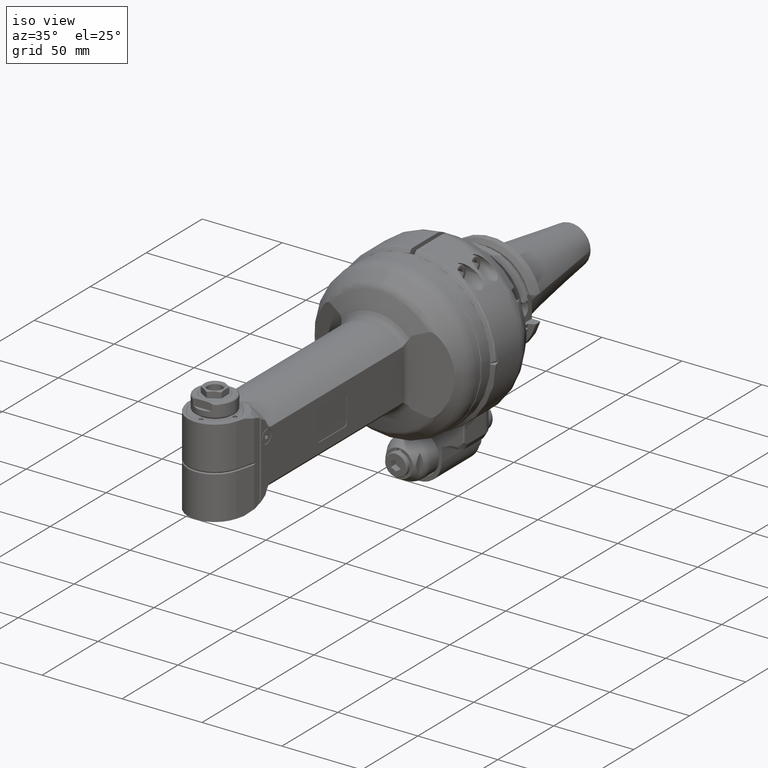
[diagram: clean part render]
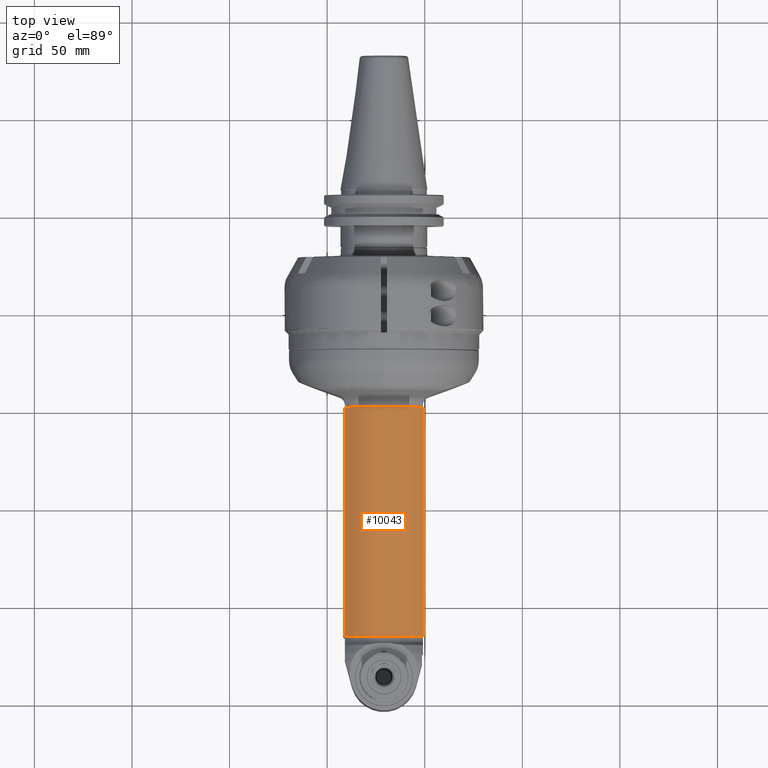
[diagram: tour spotlight — one face highlighted and labeled with its STEP entity id]
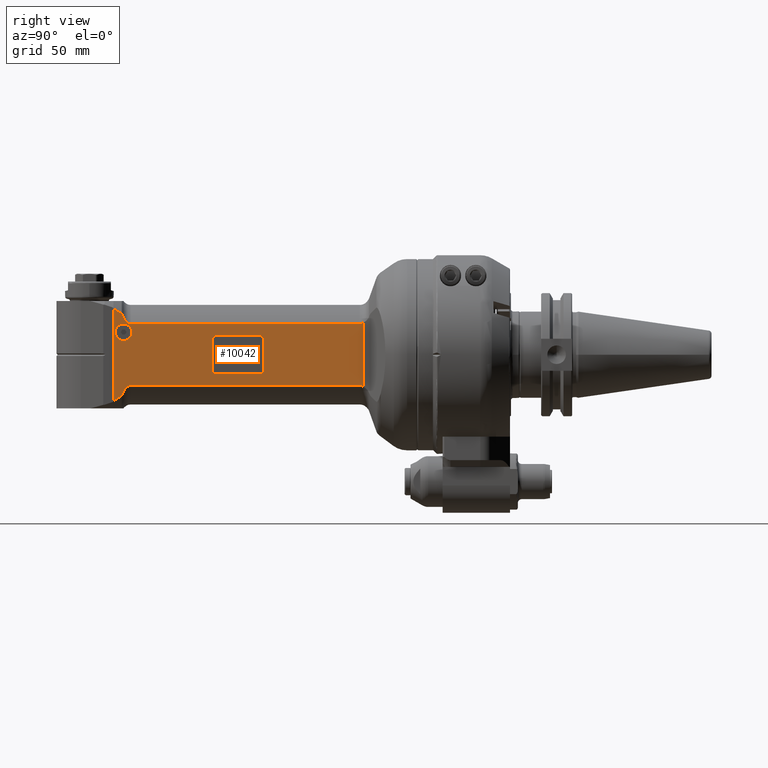
[diagram: tour spotlight — one face highlighted and labeled with its STEP entity id]
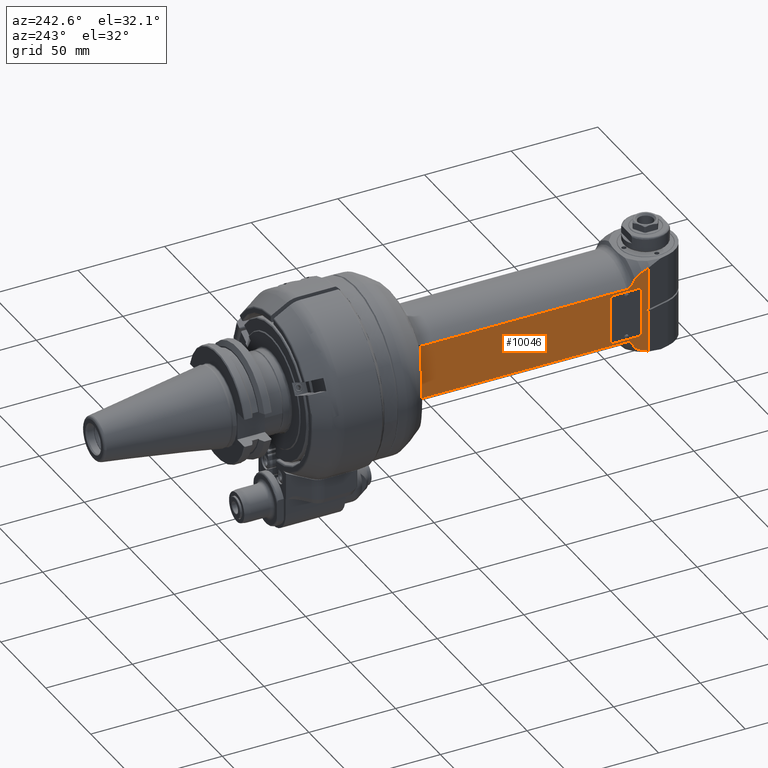
[diagram: tour spotlight — one face highlighted and labeled with its STEP entity id]
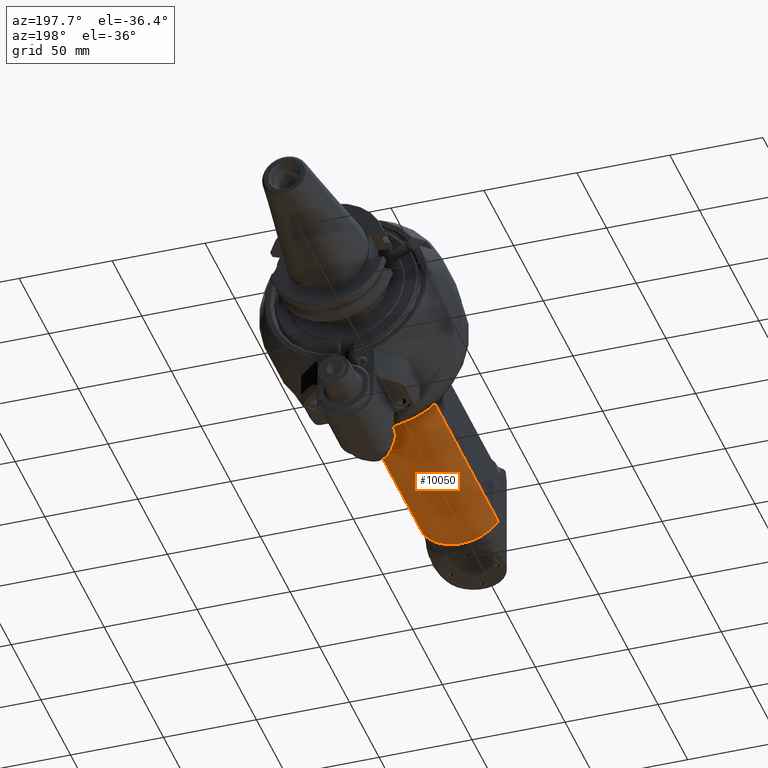
[diagram: tour spotlight — one face highlighted and labeled with its STEP entity id]
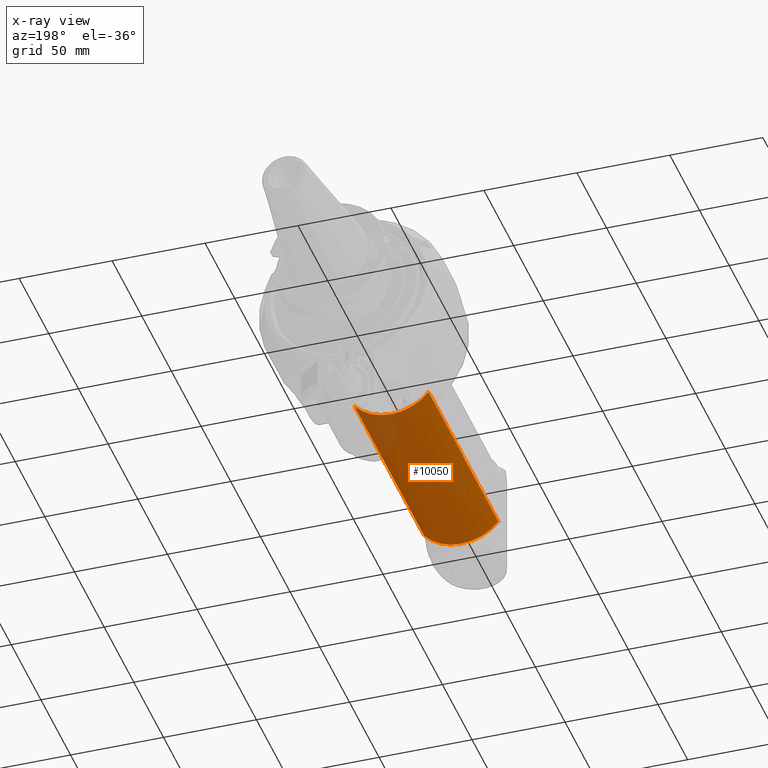
[diagram: x-ray of the same camera — body ghosted, this tour face saturated]
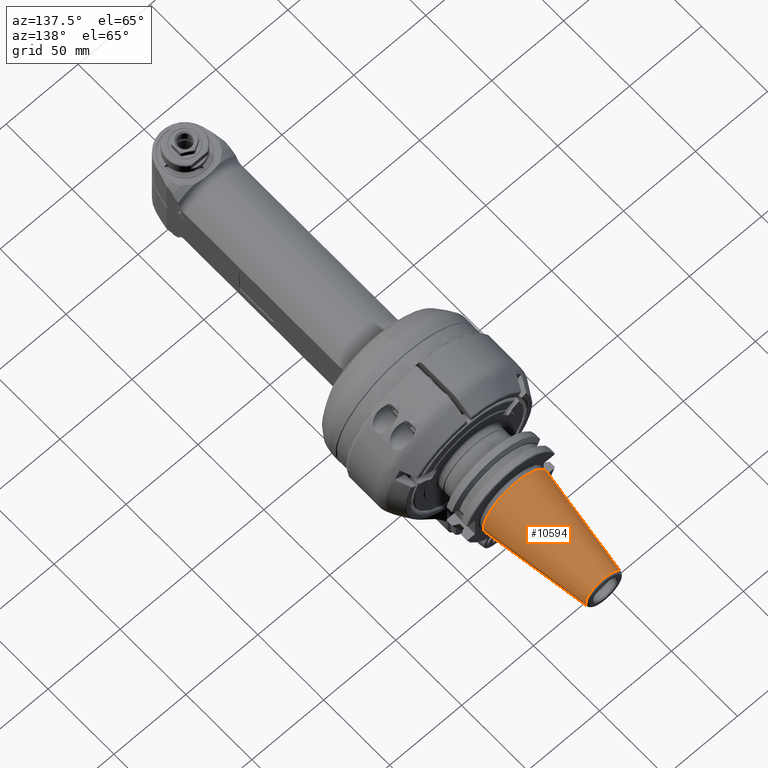
[diagram: tour spotlight — one face highlighted and labeled with its STEP entity id]
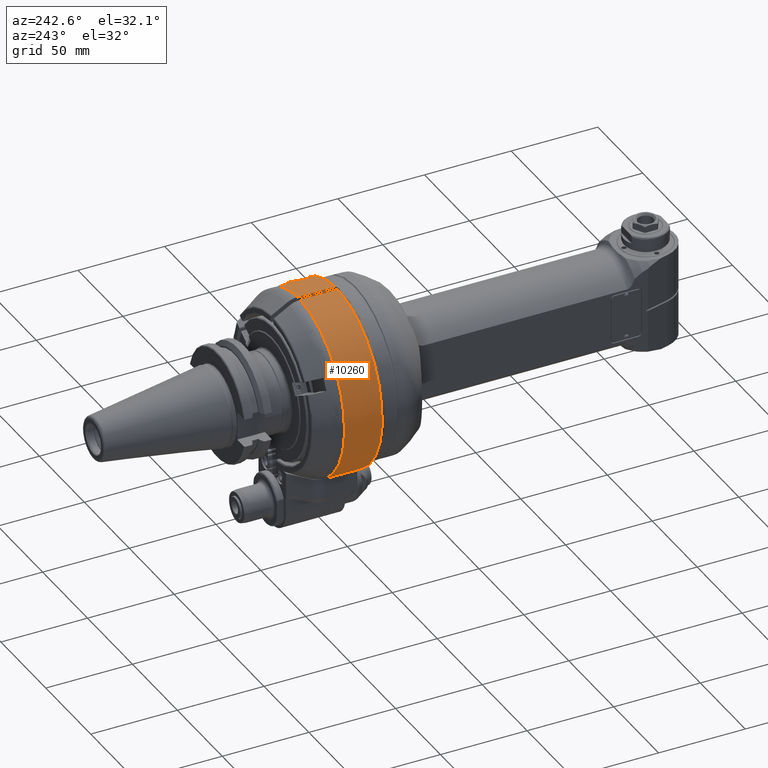
[diagram: tour spotlight — one face highlighted and labeled with its STEP entity id]
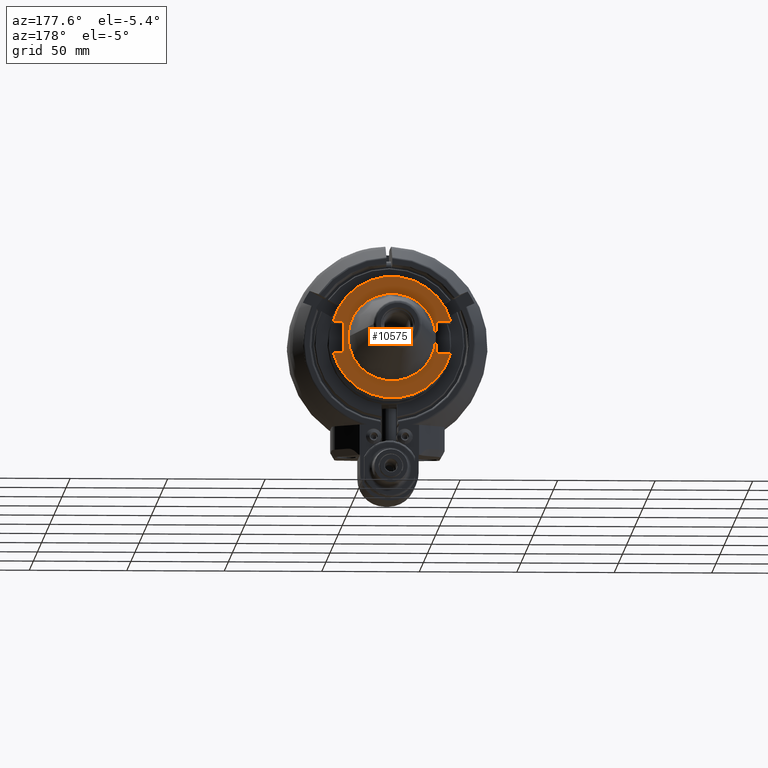
[diagram: tour spotlight — one face highlighted and labeled with its STEP entity id]
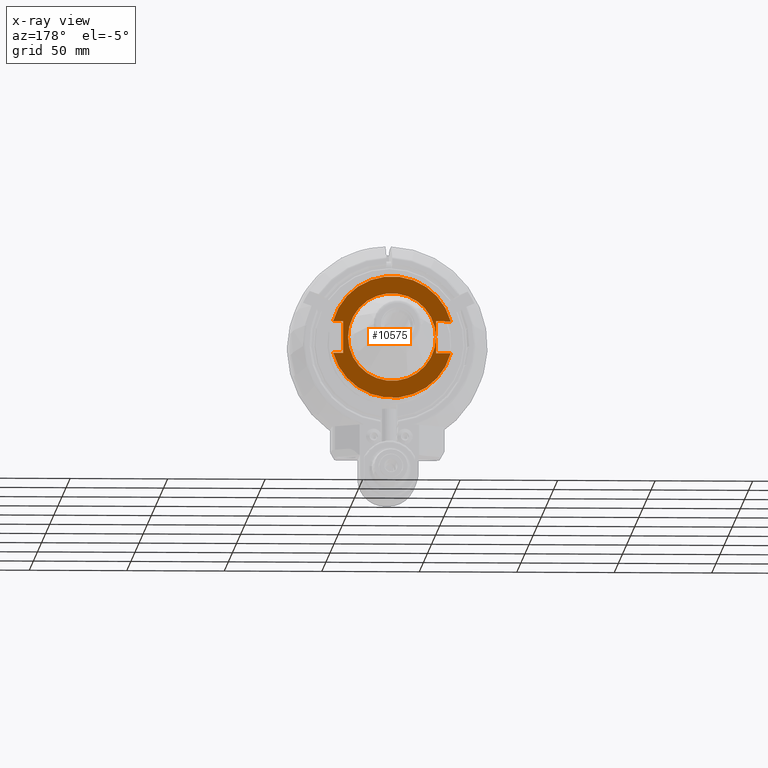
[diagram: x-ray of the same camera — body ghosted, this tour face saturated]
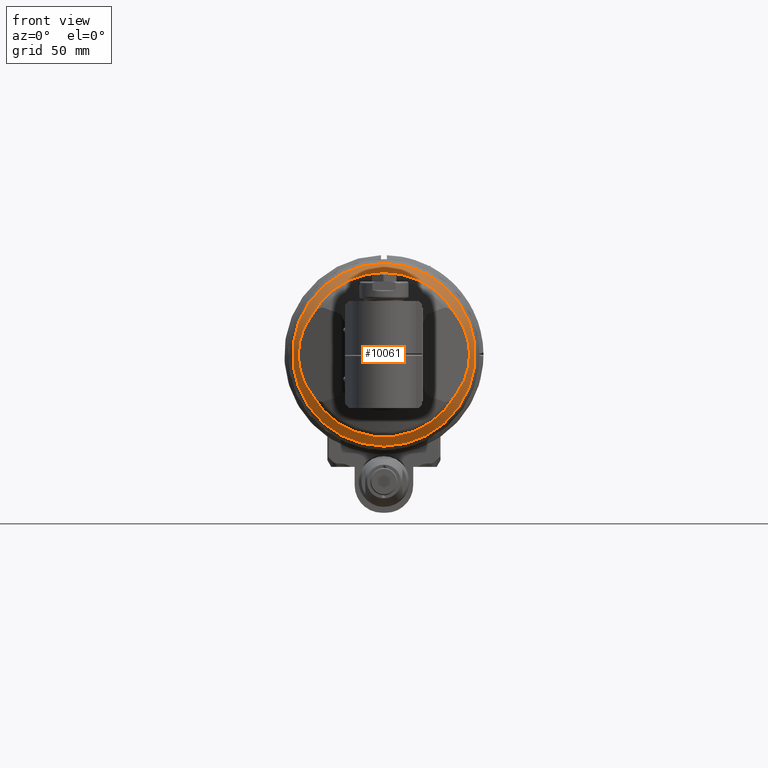
[diagram: tour spotlight — one face highlighted and labeled with its STEP entity id]
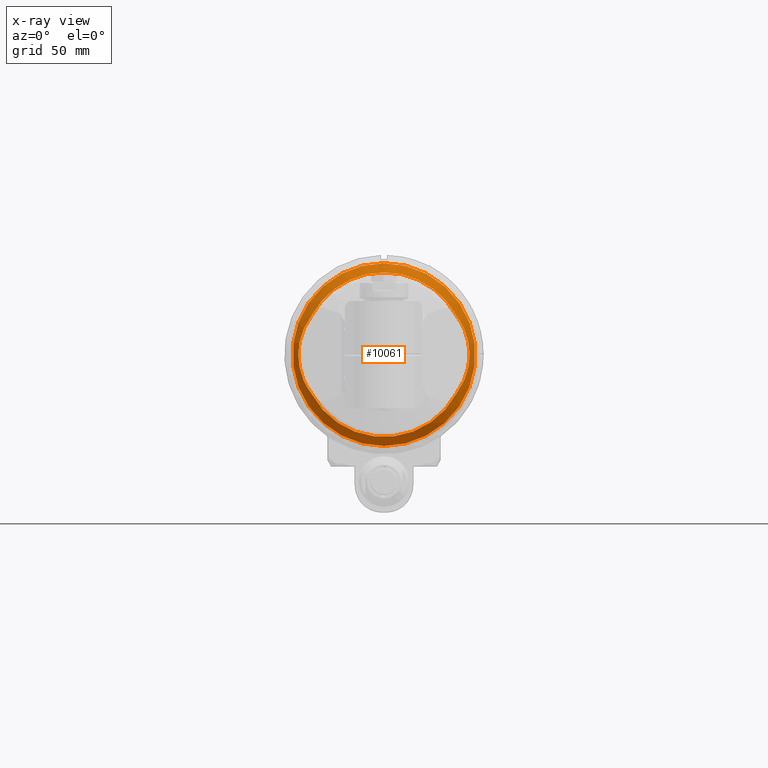
[diagram: x-ray of the same camera — body ghosted, this tour face saturated]
A machine part: a face-by-face anatomy tour. The part has 624 B-rep faces; the first image is the clean iso view, then the 8 largest visible faces are spotlighted one at a time (largest first), each with its STEP entity span.

Face 1 — top view, entity #10043. In plain terms, the highlighted cylindrical surface (partial cylindrical patch) has radius 25.5 mm, axis along (0, 1, 0).
Definition (entity closure, byte-faithful):
#836=FACE_OUTER_BOUND('',#1462,.T.);
#1462=EDGE_LOOP('',(#6681,#6682,#6683,#6684));
#2186=LINE('',#15245,#2862);
#2193=LINE('',#15332,#2869);
#2862=VECTOR('',#12057,117.4166943204);
#2869=VECTOR('',#12076,117.4166943204);
#3539=CIRCLE('',#10788,25.5);
#3540=CIRCLE('',#10789,25.5);
#4139=VERTEX_POINT('',#15243);
#4140=VERTEX_POINT('',#15244);
#4157=VERTEX_POINT('',#15329);
#4158=VERTEX_POINT('',#15331);
#5134=EDGE_CURVE('',#4139,#4140,#2186,.T.);
#5153=EDGE_CURVE('',#4157,#4140,#3539,.T.);
#5154=EDGE_CURVE('',#4157,#4158,#2193,.T.);
#5155=EDGE_CURVE('',#4139,#4158,#3540,.T.);
#6681=ORIENTED_EDGE('',*,*,#5134,.T.);
#6682=ORIENTED_EDGE('',*,*,#5153,.F.);
#6683=ORIENTED_EDGE('',*,*,#5154,.T.);
#6684=ORIENTED_EDGE('',*,*,#5155,.F.);
#9691=CYLINDRICAL_SURFACE('',#10787,25.5);
#10043=ADVANCED_FACE('',(#836),#9691,.T.);
#10787=AXIS2_PLACEMENT_3D('',#15328,#12072,#12073);
#10788=AXIS2_PLACEMENT_3D('',#15330,#12074,#12075);
#10789=AXIS2_PLACEMENT_3D('',#15333,#12077,#12078);
#12057=DIRECTION('',(-1.,0.,0.));
#12072=DIRECTION('center_axis',(-1.,0.,0.));
#12073=DIRECTION('ref_axis',(0.,-0.83292124071012,0.553391549243313));
#12074=DIRECTION('center_axis',(-1.,0.,0.));
#12075=DIRECTION('ref_axis',(0.,-0.83292124071012,0.553391549243313));
#12076=DIRECTION('',(1.,0.,0.));
#12077=DIRECTION('center_axis',(1.,0.,0.));
#12078=DIRECTION('ref_axis',(0.,-0.83292124071012,0.553391549243313));
#15243=CARTESIAN_POINT('',(185.9177317978,-15.81929201956,20.));
#15244=CARTESIAN_POINT('',(68.50103747742,-15.81929201956,20.));
#15245=CARTESIAN_POINT('',(185.9177317978,-15.81929201956,20.));
#15328=CARTESIAN_POINT('Origin',(127.2093846376,0.,0.));
#15329=CARTESIAN_POINT('',(68.50103747742,-15.81929201956,-20.));
#15330=CARTESIAN_POINT('Origin',(68.50103747742,0.,0.));
#15331=CARTESIAN_POINT('',(185.9177317978,-15.81929201956,-20.));
#15332=CARTESIAN_POINT('',(68.50103747742,-15.81929201956,-20.));
#15333=CARTESIAN_POINT('Origin',(185.9177317978,0.,0.));

Face 2 — right view, entity #10042. In plain terms, the highlighted planar face has unit normal (1, -0, -0).
Definition (entity closure, byte-faithful):
#240=FACE_BOUND('',#1460,.T.);
#241=FACE_BOUND('',#1461,.T.);
#338=(
BOUNDED_CURVE()
B_SPLINE_CURVE(2,(#15262,#15263,#15264),.UNSPECIFIED.,.F.,.F.)
B_SPLINE_CURVE_WITH_KNOTS((3,3),(-5.79878388655346,-5.57133687516896),
 .UNSPECIFIED.)
CURVE()
GEOMETRIC_REPRESENTATION_ITEM()
RATIONAL_B_SPLINE_CURVE((1.14716559525133,1.16997557221421,1.19076977881323))
REPRESENTATION_ITEM('')
);
#339=(
BOUNDED_CURVE()
B_SPLINE_CURVE(2,(#15266,#15267,#15268),.UNSPECIFIED.,.F.,.F.)
B_SPLINE_CURVE_WITH_KNOTS((3,3),(-6.84335176949651,-6.5950094872917),
 .UNSPECIFIED.)
CURVE()
GEOMETRIC_REPRESENTATION_ITEM()
RATIONAL_B_SPLINE_CURVE((1.01145288612368,1.03163270529249,1.05033280792366))
REPRESENTATION_ITEM('')
);
#340=(
BOUNDED_CURVE()
B_SPLINE_CURVE(2,(#15272,#15273,#15274),.UNSPECIFIED.,.F.,.F.)
B_SPLINE_CURVE_WITH_KNOTS((3,3),(0.0697539628981458,0.318096250802924),
 .UNSPECIFIED.)
CURVE()
GEOMETRIC_REPRESENTATION_ITEM()
RATIONAL_B_SPLINE_CURVE((1.01145288612368,1.03163270575566,1.05033280878207))
REPRESENTATION_ITEM('')
);
#341=(
BOUNDED_CURVE()
B_SPLINE_CURVE(2,(#15276,#15277,#15278),.UNSPECIFIED.,.F.,.F.)
B_SPLINE_CURVE_WITH_KNOTS((3,3),(-0.878055606093221,-0.650645525628498),
 .UNSPECIFIED.)
CURVE()
GEOMETRIC_REPRESENTATION_ITEM()
RATIONAL_B_SPLINE_CURVE((1.19060210293855,1.16981082520519,1.14700406110412))
REPRESENTATION_ITEM('')
);
#414=B_SPLINE_CURVE_WITH_KNOTS('',3,(#15247,#15248,#15249,#15250,#15251,
#15252,#15253,#15254,#15255,#15256,#15257,#15258,#15259,#15260),
 .UNSPECIFIED.,.F.,.F.,(4,2,2,2,2,2,4),(-1.41793325150411,-1.35347462430256,
-1.28901599710101,-1.2055482640413,-1.12208053098159,-1.01760224326087,
-1.00088049002965),.UNSPECIFIED.);
#415=B_SPLINE_CURVE_WITH_KNOTS('',3,(#15280,#15281,#15282,#15283,#15284,
#15285,#15286,#15287,#15288,#15289,#15290,#15291,#15292,#15293),
 .UNSPECIFIED.,.F.,.F.,(4,2,2,2,2,2,4),(-1.83498601297862,-1.81826425974736,
-1.71378597202664,-1.63031823896693,-1.54685050590722,-1.48239187870567,
-1.41793325150412),.UNSPECIFIED.);
#416=B_SPLINE_CURVE_WITH_KNOTS('',3,(#15297,#15298,#15299,#15300,#15301,
#15302,#15303,#15304),.UNSPECIFIED.,.F.,.F.,(4,2,2,4),(-1.7472273042355,
-1.66636383206749,-1.58550035989947,-1.57788618581346),.UNSPECIFIED.);
#417=B_SPLINE_CURVE_WITH_KNOTS('',3,(#15307,#15308,#15309,#15310,#15311,
#15312,#15313,#15314),.UNSPECIFIED.,.F.,.F.,(4,2,2,4),(-1.91656842272067,
-1.90895424857153,-1.82809077640352,-1.7472273042355),.UNSPECIFIED.);
#559=PLANE('',#10782);
#835=FACE_OUTER_BOUND('',#1459,.T.);
#1459=EDGE_LOOP('',(#6660,#6661,#6662,#6663,#6664,#6665,#6666,#6667,#6668,
#6669,#6670,#6671));
#1460=EDGE_LOOP('',(#6672));
#1461=EDGE_LOOP('',(#6673,#6674,#6675,#6676,#6677,#6678,#6679,#6680));
#2185=LINE('',#15241,#2861);
#2186=LINE('',#15245,#2862);
#2187=LINE('',#15270,#2863);
#2188=LINE('',#15295,#2864);
#2189=LINE('',#15306,#2865);
#2190=LINE('',#15319,#2866);
#2191=LINE('',#15323,#2867);
#2192=LINE('',#15326,#2868);
#2861=VECTOR('',#12054,22.5);
#2862=VECTOR('',#12057,117.4166943204);
#2863=VECTOR('',#12058,10.);
#2864=VECTOR('',#12059,117.4166943204);
#2865=VECTOR('',#12060,32.59043472566);
#2866=VECTOR('',#12063,15.5);
#2867=VECTOR('',#12066,22.5);
#2868=VECTOR('',#12069,15.5);
#3531=CIRCLE('',#10776,2.);
#3535=CIRCLE('',#10783,4.25);
#3536=CIRCLE('',#10784,2.);
#3537=CIRCLE('',#10785,2.);
#3538=CIRCLE('',#10786,2.);
#4130=VERTEX_POINT('',#15219);
#4131=VERTEX_POINT('',#15221);
#4138=VERTEX_POINT('',#15239);
#4139=VERTEX_POINT('',#15243);
#4140=VERTEX_POINT('',#15244);
#4141=VERTEX_POINT('',#15246);
#4142=VERTEX_POINT('',#15261);
#4143=VERTEX_POINT('',#15265);
#4144=VERTEX_POINT('',#15269);
#4145=VERTEX_POINT('',#15271);
#4146=VERTEX_POINT('',#15275);
#4147=VERTEX_POINT('',#15279);
#4148=VERTEX_POINT('',#15294);
#4149=VERTEX_POINT('',#15296);
#4150=VERTEX_POINT('',#15305);
#4151=VERTEX_POINT('',#15315);
#4152=VERTEX_POINT('',#15317);
#4153=VERTEX_POINT('',#15318);
#4154=VERTEX_POINT('',#15320);
#4155=VERTEX_POINT('',#15322);
#4156=VERTEX_POINT('',#15324);
#5123=EDGE_CURVE('',#4131,#4130,#3531,.T.);
#5133=EDGE_CURVE('',#4130,#4138,#2185,.T.);
#5134=EDGE_CURVE('',#4139,#4140,#2186,.T.);
#5135=EDGE_CURVE('',#4139,#4141,#414,.T.);
#5136=EDGE_CURVE('',#4142,#4141,#338,.T.);
#5137=EDGE_CURVE('',#4143,#4142,#339,.T.);
#5138=EDGE_CURVE('',#4144,#4143,#2187,.T.);
#5139=EDGE_CURVE('',#4144,#4145,#340,.T.);
#5140=EDGE_CURVE('',#4146,#4145,#341,.T.);
#5141=EDGE_CURVE('',#4146,#4147,#415,.T.);
#5142=EDGE_CURVE('',#4148,#4147,#2188,.T.);
#5143=EDGE_CURVE('',#4148,#4149,#416,.T.);
#5144=EDGE_CURVE('',#4150,#4149,#2189,.T.);
#5145=EDGE_CURVE('',#4150,#4140,#417,.T.);
#5146=EDGE_CURVE('',#4151,#4151,#3535,.T.);
#5147=EDGE_CURVE('',#4152,#4153,#2190,.T.);
#5148=EDGE_CURVE('',#4152,#4154,#3536,.T.);
#5149=EDGE_CURVE('',#4154,#4155,#2191,.T.);
#5150=EDGE_CURVE('',#4155,#4156,#3537,.T.);
#5151=EDGE_CURVE('',#4156,#4131,#2192,.T.);
#5152=EDGE_CURVE('',#4138,#4153,#3538,.T.);
#6660=ORIENTED_EDGE('',*,*,#5134,.F.);
#6661=ORIENTED_EDGE('',*,*,#5135,.T.);
#6662=ORIENTED_EDGE('',*,*,#5136,.F.);
#6663=ORIENTED_EDGE('',*,*,#5137,.F.);
#6664=ORIENTED_EDGE('',*,*,#5138,.F.);
#6665=ORIENTED_EDGE('',*,*,#5139,.T.);
#6666=ORIENTED_EDGE('',*,*,#5140,.F.);
#6667=ORIENTED_EDGE('',*,*,#5141,.T.);
#6668=ORIENTED_EDGE('',*,*,#5142,.F.);
#6669=ORIENTED_EDGE('',*,*,#5143,.T.);
#6670=ORIENTED_EDGE('',*,*,#5144,.F.);
#6671=ORIENTED_EDGE('',*,*,#5145,.T.);
#6672=ORIENTED_EDGE('',*,*,#5146,.T.);
#6673=ORIENTED_EDGE('',*,*,#5147,.F.);
#6674=ORIENTED_EDGE('',*,*,#5148,.T.);
#6675=ORIENTED_EDGE('',*,*,#5149,.T.);
#6676=ORIENTED_EDGE('',*,*,#5150,.T.);
#6677=ORIENTED_EDGE('',*,*,#5151,.T.);
#6678=ORIENTED_EDGE('',*,*,#5123,.T.);
#6679=ORIENTED_EDGE('',*,*,#5133,.T.);
#6680=ORIENTED_EDGE('',*,*,#5152,.T.);
#10042=ADVANCED_FACE('',(#835,#240,#241),#559,.T.);
#10776=AXIS2_PLACEMENT_3D('',#15222,#12036,#12037);
#10782=AXIS2_PLACEMENT_3D('',#15242,#12055,#12056);
#10783=AXIS2_PLACEMENT_3D('',#15316,#12061,#12062);
#10784=AXIS2_PLACEMENT_3D('',#15321,#12064,#12065);
#10785=AXIS2_PLACEMENT_3D('',#15325,#12067,#12068);
#10786=AXIS2_PLACEMENT_3D('',#15327,#12070,#12071);
#12036=DIRECTION('center_axis',(0.,0.,-1.));
#12037=DIRECTION('ref_axis',(1.,0.,0.));
#12054=DIRECTION('',(-1.,0.,0.));
#12055=DIRECTION('center_axis',(0.,0.,1.));
#12056=DIRECTION('ref_axis',(1.,0.,0.));
#12057=DIRECTION('',(-1.,0.,0.));
#12058=DIRECTION('',(0.,-1.,0.));
#12059=DIRECTION('',(1.,0.,0.));
#12060=DIRECTION('',(1.740991800171E-11,1.,-7.636215818995E-13));
#12061=DIRECTION('center_axis',(0.,0.,-1.));
#12062=DIRECTION('ref_axis',(0.,1.,0.));
#12063=DIRECTION('',(0.,-1.,0.));
#12064=DIRECTION('center_axis',(0.,0.,-1.));
#12065=DIRECTION('ref_axis',(-1.,0.,0.));
#12066=DIRECTION('',(1.,0.,0.));
#12067=DIRECTION('center_axis',(0.,0.,-1.));
#12068=DIRECTION('ref_axis',(0.,1.,0.));
#12069=DIRECTION('',(0.,-1.,0.));
#12070=DIRECTION('center_axis',(0.,0.,-1.));
#12071=DIRECTION('ref_axis',(0.,-1.,0.));
#15219=CARTESIAN_POINT('',(142.25,-9.75,20.));
#15221=CARTESIAN_POINT('',(144.25,-7.75,20.));
#15222=CARTESIAN_POINT('Origin',(142.25,-7.75,20.));
#15239=CARTESIAN_POINT('',(119.75,-9.75,20.));
#15241=CARTESIAN_POINT('',(142.25,-9.75,20.));
#15242=CARTESIAN_POINT('Origin',(175.036305,-5.883888,20.));
#15243=CARTESIAN_POINT('',(185.9177317978,-15.81929201956,20.));
#15244=CARTESIAN_POINT('',(68.50103747742,-15.81929201956,20.));
#15245=CARTESIAN_POINT('',(185.9177317978,-15.81929201956,20.));
#15246=CARTESIAN_POINT('',(189.194340066126,-18.4431507452201,19.9999999387759));
#15247=CARTESIAN_POINT('Ctrl Pts',(185.9177317978,-15.8192920195564,20.));
#15248=CARTESIAN_POINT('Ctrl Pts',(186.132593888472,-15.8192920195564,20.));
#15249=CARTESIAN_POINT('Ctrl Pts',(186.365447868562,-15.8493383555497,20.));
#15250=CARTESIAN_POINT('Ctrl Pts',(186.814833472066,-15.9724307903183,20.));
#15251=CARTESIAN_POINT('Ctrl Pts',(187.031498144669,-16.0649906372325,20.));
#15252=CARTESIAN_POINT('Ctrl Pts',(187.463973040054,-16.3018473660257,20.));
#15253=CARTESIAN_POINT('Ctrl Pts',(187.710168959505,-16.4801758064256,20.));
#15254=CARTESIAN_POINT('Ctrl Pts',(188.157972195965,-16.8881912998672,20.));
#15255=CARTESIAN_POINT('Ctrl Pts',(188.360081587315,-17.1173269779209,20.));
#15256=CARTESIAN_POINT('Ctrl Pts',(188.739274313323,-17.6160237864576,20.));
#15257=CARTESIAN_POINT('Ctrl Pts',(188.941524617473,-17.9397924573066,20.));
#15258=CARTESIAN_POINT('Ctrl Pts',(189.141412830521,-18.3335130779353,20.));
#15259=CARTESIAN_POINT('Ctrl Pts',(189.16826338729,-18.3882155377727,20.));
#15260=CARTESIAN_POINT('Ctrl Pts',(189.194340091875,-18.4431507329973,20.));
#15261=CARTESIAN_POINT('',(190.450726484234,-21.0000001574844,19.9999999545987));
#15262=CARTESIAN_POINT('Ctrl Pts',(190.450726467804,-21.0000001658873,20.));
#15263=CARTESIAN_POINT('Ctrl Pts',(189.781811497715,-19.6807631301215,20.));
#15264=CARTESIAN_POINT('Ctrl Pts',(189.194340091835,-18.4431507330173,20.));
#15265=CARTESIAN_POINT('',(194.490018575637,-23.5328455320279,20.));
#15266=CARTESIAN_POINT('Ctrl Pts',(194.49,-23.5328133386128,20.));
#15267=CARTESIAN_POINT('Ctrl Pts',(192.355495993779,-22.2265738560147,20.));
#15268=CARTESIAN_POINT('Ctrl Pts',(190.450726526485,-21.0000000919526,20.));
#15269=CARTESIAN_POINT('',(194.490018575673,23.5328455320907,20.));
#15270=CARTESIAN_POINT('',(194.49,-2.94194399999991,20.));
#15271=CARTESIAN_POINT('',(190.450726423772,21.0000000627793,19.9999999818992));
#15272=CARTESIAN_POINT('Ctrl Pts',(194.49,23.5328133386128,20.));
#15273=CARTESIAN_POINT('Ctrl Pts',(192.355495945746,22.2265738266203,20.));
#15274=CARTESIAN_POINT('Ctrl Pts',(190.450726440605,21.0000000366503,20.));
#15275=CARTESIAN_POINT('',(189.194340066126,18.4431507452205,19.9999999387758));
#15276=CARTESIAN_POINT('Ctrl Pts',(189.194340091835,18.4431507330178,20.));
#15277=CARTESIAN_POINT('Ctrl Pts',(189.781811475546,19.6807630834191,20.));
#15278=CARTESIAN_POINT('Ctrl Pts',(190.450726417215,21.0000000661154,20.));
#15279=CARTESIAN_POINT('',(185.9177317978,15.81929201956,20.));
#15280=CARTESIAN_POINT('Ctrl Pts',(189.194340091875,18.4431507329977,20.));
#15281=CARTESIAN_POINT('Ctrl Pts',(189.16826338729,18.388215537773,20.));
#15282=CARTESIAN_POINT('Ctrl Pts',(189.141412830521,18.3335130779354,20.));
#15283=CARTESIAN_POINT('Ctrl Pts',(188.941524617473,17.9397924573066,20.));
#15284=CARTESIAN_POINT('Ctrl Pts',(188.739274313323,17.6160237864576,20.));
#15285=CARTESIAN_POINT('Ctrl Pts',(188.360081587315,17.1173269779209,20.));
#15286=CARTESIAN_POINT('Ctrl Pts',(188.157972195965,16.8881912998672,20.));
#15287=CARTESIAN_POINT('Ctrl Pts',(187.710168959505,16.4801758064256,20.));
#15288=CARTESIAN_POINT('Ctrl Pts',(187.463973040054,16.3018473660257,20.));
#15289=CARTESIAN_POINT('Ctrl Pts',(187.031498144669,16.0649906372325,20.));
#15290=CARTESIAN_POINT('Ctrl Pts',(186.814833472066,15.9724307903183,20.));
#15291=CARTESIAN_POINT('Ctrl Pts',(186.365447868562,15.8493383555497,20.));
#15292=CARTESIAN_POINT('Ctrl Pts',(186.132593888472,15.8192920195564,20.));
#15293=CARTESIAN_POINT('Ctrl Pts',(185.9177317978,15.8192920195564,20.));
#15294=CARTESIAN_POINT('',(68.50103747742,15.81929201956,20.));
#15295=CARTESIAN_POINT('',(68.50103747742,15.81929201956,20.));
#15296=CARTESIAN_POINT('',(66.80083020146,16.29521736268,19.99999999998));
#15297=CARTESIAN_POINT('Ctrl Pts',(68.50103747742,15.8192920195564,20.));
#15298=CARTESIAN_POINT('Ctrl Pts',(68.2314925701933,15.8192920195564,20.));
#15299=CARTESIAN_POINT('Ctrl Pts',(67.9394152683992,15.8571351272388,20.));
#15300=CARTESIAN_POINT('Ctrl Pts',(67.3757766929904,16.0119361033134,20.));
#15301=CARTESIAN_POINT('Ctrl Pts',(67.1040398042386,16.1282538360826,20.));
#15302=CARTESIAN_POINT('Ctrl Pts',(66.8453989107661,16.2699786800895,20.));
#15303=CARTESIAN_POINT('Ctrl Pts',(66.8231184108346,16.2824584224785,20.));
#15304=CARTESIAN_POINT('Ctrl Pts',(66.8008302014479,16.2952173626588,20.));
#15305=CARTESIAN_POINT('',(66.80083020089,-16.29521736297,20.));
#15306=CARTESIAN_POINT('',(66.80083020089,-16.29521736297,20.));
#15307=CARTESIAN_POINT('Ctrl Pts',(66.8008302008935,-16.2952173629761,20.));
#15308=CARTESIAN_POINT('Ctrl Pts',(66.8231184104651,-16.2824584226854,20.));
#15309=CARTESIAN_POINT('Ctrl Pts',(66.8453989105815,-16.2699786801906,20.));
#15310=CARTESIAN_POINT('Ctrl Pts',(67.1040398042386,-16.1282538360826,20.));
#15311=CARTESIAN_POINT('Ctrl Pts',(67.3757766929904,-16.0119361033134,20.));
#15312=CARTESIAN_POINT('Ctrl Pts',(67.9394152683992,-15.8571351272388,20.));
#15313=CARTESIAN_POINT('Ctrl Pts',(68.2314925701933,-15.8192920195564,20.));
#15314=CARTESIAN_POINT('Ctrl Pts',(68.50103747742,-15.8192920195564,20.));
#15315=CARTESIAN_POINT('',(189.5,-15.75,20.));
#15316=CARTESIAN_POINT('Origin',(189.5,-11.5,20.));
#15317=CARTESIAN_POINT('',(117.75,7.75,20.));
#15318=CARTESIAN_POINT('',(117.75,-7.75,20.));
#15319=CARTESIAN_POINT('',(117.75,7.75,20.));
#15320=CARTESIAN_POINT('',(119.75,9.75,20.));
#15321=CARTESIAN_POINT('Origin',(119.75,7.75,20.));
#15322=CARTESIAN_POINT('',(142.25,9.75,20.));
#15323=CARTESIAN_POINT('',(119.75,9.75,20.));
#15324=CARTESIAN_POINT('',(144.25,7.75,20.));
#15325=CARTESIAN_POINT('Origin',(142.25,7.75,20.));
#15326=CARTESIAN_POINT('',(144.25,7.75,20.));
#15327=CARTESIAN_POINT('Origin',(119.75,-7.75,20.));

Face 3 — auxiliary view, entity #10046. In plain terms, the highlighted planar face has unit normal (1, -0, -0).
Definition (entity closure, byte-faithful):
#242=FACE_BOUND('',#1466,.T.);
#342=(
BOUNDED_CURVE()
B_SPLINE_CURVE(2,(#15353,#15354,#15355),.UNSPECIFIED.,.F.,.F.)
B_SPLINE_CURVE_WITH_KNOTS((3,3),(1.06457238206066,1.31559591796353),
 .UNSPECIFIED.)
CURVE()
GEOMETRIC_REPRESENTATION_ITEM()
RATIONAL_B_SPLINE_CURVE((1.25039827032433,1.27526090229318,1.2979263660166))
REPRESENTATION_ITEM('')
);
#344=(
BOUNDED_CURVE()
B_SPLINE_CURVE(2,(#15366,#15367,#15368),.UNSPECIFIED.,.F.,.F.)
B_SPLINE_CURVE_WITH_KNOTS((3,3),(-0.516400337504524,-0.239175027780507),
 .UNSPECIFIED.)
CURVE()
GEOMETRIC_REPRESENTATION_ITEM()
RATIONAL_B_SPLINE_CURVE((1.08175807390529,1.06139863950765,1.03933618902282))
REPRESENTATION_ITEM('')
);
#345=(
BOUNDED_CURVE()
B_SPLINE_CURVE(2,(#15370,#15371,#15372),.UNSPECIFIED.,.F.,.F.)
B_SPLINE_CURVE_WITH_KNOTS((3,3),(-0.251095684557566,-0.0966047859598661),
 .UNSPECIFIED.)
CURVE()
GEOMETRIC_REPRESENTATION_ITEM()
RATIONAL_B_SPLINE_CURVE((1.02878333693949,1.02014305744285,1.01123890250901))
REPRESENTATION_ITEM('')
);
#346=(
BOUNDED_CURVE()
B_SPLINE_CURVE(2,(#15376,#15377,#15378),.UNSPECIFIED.,.F.,.F.)
B_SPLINE_CURVE_WITH_KNOTS((3,3),(-5.84507770998511,-5.60410979834287),
 .UNSPECIFIED.)
CURVE()
GEOMETRIC_REPRESENTATION_ITEM()
RATIONAL_B_SPLINE_CURVE((2.09915162755681,2.11669375284465,2.13092142245682))
REPRESENTATION_ITEM('')
);
#347=(
BOUNDED_CURVE()
B_SPLINE_CURVE(2,(#15400,#15401,#15402),.UNSPECIFIED.,.F.,.F.)
B_SPLINE_CURVE_WITH_KNOTS((3,3),(-3.53534677403729,-3.29437885793066),
 .UNSPECIFIED.)
CURVE()
GEOMETRIC_REPRESENTATION_ITEM()
RATIONAL_B_SPLINE_CURVE((2.13092145694076,2.11669378709901,2.09915166152828))
REPRESENTATION_ITEM('')
);
#348=(
BOUNDED_CURVE()
B_SPLINE_CURVE(2,(#15406,#15407,#15408),.UNSPECIFIED.,.F.,.F.)
B_SPLINE_CURVE_WITH_KNOTS((3,3),(-10.5228210849927,-10.3683301622899),
 .UNSPECIFIED.)
CURVE()
GEOMETRIC_REPRESENTATION_ITEM()
RATIONAL_B_SPLINE_CURVE((1.01123897320325,1.02014312875957,1.02878340886023))
REPRESENTATION_ITEM('')
);
#349=(
BOUNDED_CURVE()
B_SPLINE_CURVE(2,(#15409,#15410,#15411),.UNSPECIFIED.,.F.,.F.)
B_SPLINE_CURVE_WITH_KNOTS((3,3),(-7.42204388393568,-7.14481854557654),
 .UNSPECIFIED.)
CURVE()
GEOMETRIC_REPRESENTATION_ITEM()
RATIONAL_B_SPLINE_CURVE((1.03933624816308,1.06139869990331,1.08175813545943))
REPRESENTATION_ITEM('')
);
#350=(
BOUNDED_CURVE()
B_SPLINE_CURVE(2,(#15449,#15450,#15451),.UNSPECIFIED.,.F.,.F.)
B_SPLINE_CURVE_WITH_KNOTS((3,3),(-1.31559669706361,-1.06457311813805),
 .UNSPECIFIED.)
CURVE()
GEOMETRIC_REPRESENTATION_ITEM()
RATIONAL_B_SPLINE_CURVE((1.29792656170262,1.27526109456195,1.25039845884458))
REPRESENTATION_ITEM('')
);
#418=B_SPLINE_CURVE_WITH_KNOTS('',3,(#15336,#15337,#15338,#15339,#15340,
#15341,#15342,#15343,#15344,#15345,#15346,#15347,#15348,#15349),
 .UNSPECIFIED.,.F.,.F.,(4,2,2,2,2,2,4),(1.41793325150412,1.48239187870567,
1.54685050590722,1.63031823896693,1.71378597202664,1.81826425974736,1.83498601297407),
 .UNSPECIFIED.);
#419=B_SPLINE_CURVE_WITH_KNOTS('',3,(#15380,#15381,#15382,#15383,#15384,
#15385,#15386,#15387,#15388,#15389,#15390,#15391,#15392,#15393,#15394,#15395,
#15396,#15397,#15398),.UNSPECIFIED.,.F.,.F.,(4,2,2,2,3,2,2,2,4),(0.471311837276468,
0.483317272137697,0.501097837827068,0.506833427337296,0.511781501848717,
0.516729576360138,0.522465165870366,0.540245731559737,0.552251166425824),
 .UNSPECIFIED.);
#420=B_SPLINE_CURVE_WITH_KNOTS('',3,(#15413,#15414,#15415,#15416,#15417,
#15418,#15419,#15420),.UNSPECIFIED.,.F.,.F.,(4,2,2,4),(-1.91656842272116,
-1.90895424857153,-1.82809077640352,-1.7472273042355),.UNSPECIFIED.);
#421=B_SPLINE_CURVE_WITH_KNOTS('',3,(#15424,#15425,#15426,#15427,#15428,
#15429,#15430,#15431),.UNSPECIFIED.,.F.,.F.,(4,2,2,4),(1.57788618575119,
1.58550035989947,1.66636383206749,1.7472273042355),.UNSPECIFIED.);
#422=B_SPLINE_CURVE_WITH_KNOTS('',3,(#15435,#15436,#15437,#15438,#15439,
#15440,#15441,#15442,#15443,#15444,#15445,#15446,#15447,#15448),
 .UNSPECIFIED.,.F.,.F.,(4,2,2,2,2,2,4),(-1.83498601297379,-1.81826425974736,
-1.71378597202664,-1.63031823896693,-1.54685050590722,-1.48239187870567,
-1.41793325150412),.UNSPECIFIED.);
#560=PLANE('',#10795);
#839=FACE_OUTER_BOUND('',#1465,.T.);
#1465=EDGE_LOOP('',(#6695,#6696,#6697,#6698,#6699,#6700,#6701,#6702,#6703,
#6704,#6705,#6706,#6707,#6708,#6709,#6710,#6711,#6712));
#1466=EDGE_LOOP('',(#6713,#6714,#6715,#6716,#6717,#6718,#6719,#6720));
#2193=LINE('',#15332,#2869);
#2194=LINE('',#15374,#2870);
#2195=LINE('',#15404,#2871);
#2196=LINE('',#15422,#2872);
#2197=LINE('',#15433,#2873);
#2198=LINE('',#15454,#2874);
#2199=LINE('',#15458,#2875);
#2200=LINE('',#15462,#2876);
#2201=LINE('',#15466,#2877);
#2869=VECTOR('',#12076,117.4166943204);
#2870=VECTOR('',#12091,10.);
#2871=VECTOR('',#12092,10.);
#2872=VECTOR('',#12093,32.59043472594);
#2873=VECTOR('',#12094,117.4166943204);
#2874=VECTOR('',#12095,14.);
#2875=VECTOR('',#12098,25.);
#2876=VECTOR('',#12101,14.);
#2877=VECTOR('',#12104,25.);
#3544=CIRCLE('',#10796,2.);
#3545=CIRCLE('',#10797,2.);
#3546=CIRCLE('',#10798,2.);
#3547=CIRCLE('',#10799,2.);
#4157=VERTEX_POINT('',#15329);
#4158=VERTEX_POINT('',#15331);
#4159=VERTEX_POINT('',#15335);
#4160=VERTEX_POINT('',#15352);
#4163=VERTEX_POINT('',#15364);
#4164=VERTEX_POINT('',#15365);
#4165=VERTEX_POINT('',#15369);
#4166=VERTEX_POINT('',#15373);
#4167=VERTEX_POINT('',#15375);
#4168=VERTEX_POINT('',#15379);
#4169=VERTEX_POINT('',#15399);
#4170=VERTEX_POINT('',#15403);
#4171=VERTEX_POINT('',#15405);
#4172=VERTEX_POINT('',#15412);
#4173=VERTEX_POINT('',#15421);
#4174=VERTEX_POINT('',#15423);
#4175=VERTEX_POINT('',#15432);
#4176=VERTEX_POINT('',#15434);
#4177=VERTEX_POINT('',#15452);
#4178=VERTEX_POINT('',#15453);
#4179=VERTEX_POINT('',#15455);
#4180=VERTEX_POINT('',#15457);
#4181=VERTEX_POINT('',#15459);
#4182=VERTEX_POINT('',#15461);
#4183=VERTEX_POINT('',#15463);
#4184=VERTEX_POINT('',#15465);
#5154=EDGE_CURVE('',#4157,#4158,#2193,.T.);
#5156=EDGE_CURVE('',#4158,#4159,#418,.T.);
#5158=EDGE_CURVE('',#4160,#4159,#342,.T.);
#5162=EDGE_CURVE('',#4163,#4164,#344,.T.);
#5163=EDGE_CURVE('',#4164,#4165,#345,.T.);
#5164=EDGE_CURVE('',#4165,#4166,#2194,.T.);
#5165=EDGE_CURVE('',#4167,#4166,#346,.T.);
#5166=EDGE_CURVE('',#4168,#4167,#419,.F.);
#5167=EDGE_CURVE('',#4169,#4168,#347,.T.);
#5168=EDGE_CURVE('',#4169,#4170,#2195,.T.);
#5169=EDGE_CURVE('',#4170,#4171,#348,.T.);
#5170=EDGE_CURVE('',#4171,#4160,#349,.T.);
#5171=EDGE_CURVE('',#4172,#4157,#420,.T.);
#5172=EDGE_CURVE('',#4173,#4172,#2196,.T.);
#5173=EDGE_CURVE('',#4173,#4174,#421,.T.);
#5174=EDGE_CURVE('',#4175,#4174,#2197,.T.);
#5175=EDGE_CURVE('',#4176,#4175,#422,.T.);
#5176=EDGE_CURVE('',#4176,#4163,#350,.T.);
#5177=EDGE_CURVE('',#4177,#4178,#2198,.T.);
#5178=EDGE_CURVE('',#4178,#4179,#3544,.T.);
#5179=EDGE_CURVE('',#4179,#4180,#2199,.T.);
#5180=EDGE_CURVE('',#4180,#4181,#3545,.T.);
#5181=EDGE_CURVE('',#4181,#4182,#2200,.T.);
#5182=EDGE_CURVE('',#4182,#4183,#3546,.T.);
#5183=EDGE_CURVE('',#4183,#4184,#2201,.T.);
#5184=EDGE_CURVE('',#4184,#4177,#3547,.T.);
#6695=ORIENTED_EDGE('',*,*,#5162,.T.);
#6696=ORIENTED_EDGE('',*,*,#5163,.T.);
#6697=ORIENTED_EDGE('',*,*,#5164,.T.);
#6698=ORIENTED_EDGE('',*,*,#5165,.F.);
#6699=ORIENTED_EDGE('',*,*,#5166,.F.);
#6700=ORIENTED_EDGE('',*,*,#5167,.F.);
#6701=ORIENTED_EDGE('',*,*,#5168,.T.);
#6702=ORIENTED_EDGE('',*,*,#5169,.T.);
#6703=ORIENTED_EDGE('',*,*,#5170,.T.);
#6704=ORIENTED_EDGE('',*,*,#5158,.T.);
#6705=ORIENTED_EDGE('',*,*,#5156,.F.);
#6706=ORIENTED_EDGE('',*,*,#5154,.F.);
#6707=ORIENTED_EDGE('',*,*,#5171,.F.);
#6708=ORIENTED_EDGE('',*,*,#5172,.F.);
#6709=ORIENTED_EDGE('',*,*,#5173,.T.);
#6710=ORIENTED_EDGE('',*,*,#5174,.F.);
#6711=ORIENTED_EDGE('',*,*,#5175,.F.);
#6712=ORIENTED_EDGE('',*,*,#5176,.T.);
#6713=ORIENTED_EDGE('',*,*,#5177,.T.);
#6714=ORIENTED_EDGE('',*,*,#5178,.T.);
#6715=ORIENTED_EDGE('',*,*,#5179,.T.);
#6716=ORIENTED_EDGE('',*,*,#5180,.T.);
#6717=ORIENTED_EDGE('',*,*,#5181,.T.);
#6718=ORIENTED_EDGE('',*,*,#5182,.T.);
#6719=ORIENTED_EDGE('',*,*,#5183,.T.);
#6720=ORIENTED_EDGE('',*,*,#5184,.T.);
#10046=ADVANCED_FACE('',(#839,#242),#560,.F.);
#10795=AXIS2_PLACEMENT_3D('',#15363,#12089,#12090);
#10796=AXIS2_PLACEMENT_3D('',#15456,#12096,#12097);
#10797=AXIS2_PLACEMENT_3D('',#15460,#12099,#12100);
#10798=AXIS2_PLACEMENT_3D('',#15464,#12102,#12103);
#10799=AXIS2_PLACEMENT_3D('',#15467,#12105,#12106);
#12076=DIRECTION('',(1.,0.,0.));
#12089=DIRECTION('center_axis',(0.,0.,1.));
#12090=DIRECTION('ref_axis',(1.,0.,0.));
#12091=DIRECTION('',(0.,-1.,0.));
#12092=DIRECTION('',(0.,-1.,0.));
#12093=DIRECTION('',(-4.142415433537E-13,-1.,-1.831383665353E-14));
#12094=DIRECTION('',(-1.,0.,0.));
#12095=DIRECTION('',(-1.,0.,0.));
#12096=DIRECTION('center_axis',(0.,0.,1.));
#12097=DIRECTION('ref_axis',(-3.410605131648E-13,1.,0.));
#12098=DIRECTION('',(0.,-1.,0.));
#12099=DIRECTION('center_axis',(0.,0.,1.));
#12100=DIRECTION('ref_axis',(-1.,0.,0.));
#12101=DIRECTION('',(1.,0.,0.));
#12102=DIRECTION('center_axis',(0.,0.,1.));
#12103=DIRECTION('ref_axis',(0.,-1.,0.));
#12104=DIRECTION('',(0.,1.,0.));
#12105=DIRECTION('center_axis',(0.,0.,1.));
#12106=DIRECTION('ref_axis',(1.,0.,0.));
#15329=CARTESIAN_POINT('',(68.50103747742,-15.81929201956,-20.));
#15331=CARTESIAN_POINT('',(185.9177317978,-15.81929201956,-20.));
#15332=CARTESIAN_POINT('',(68.50103747742,-15.81929201956,-20.));
#15335=CARTESIAN_POINT('',(189.194340066109,-18.4431507451734,-19.9999999387869));
#15336=CARTESIAN_POINT('Ctrl Pts',(185.9177317978,-15.8192920195564,-20.));
#15337=CARTESIAN_POINT('Ctrl Pts',(186.132593888472,-15.8192920195564,-20.));
#15338=CARTESIAN_POINT('Ctrl Pts',(186.365447868562,-15.8493383555497,-20.));
#15339=CARTESIAN_POINT('Ctrl Pts',(186.814833472066,-15.9724307903183,-20.));
#15340=CARTESIAN_POINT('Ctrl Pts',(187.031498144669,-16.0649906372325,-20.));
#15341=CARTESIAN_POINT('Ctrl Pts',(187.463973040054,-16.3018473660257,-20.));
#15342=CARTESIAN_POINT('Ctrl Pts',(187.710168959505,-16.4801758064256,-20.));
#15343=CARTESIAN_POINT('Ctrl Pts',(188.157972195965,-16.8881912998672,-20.));
#15344=CARTESIAN_POINT('Ctrl Pts',(188.360081587315,-17.1173269779209,-20.));
#15345=CARTESIAN_POINT('Ctrl Pts',(188.739274313323,-17.6160237864576,-20.));
#15346=CARTESIAN_POINT('Ctrl Pts',(188.941524617473,-17.9397924573066,-20.));
#15347=CARTESIAN_POINT('Ctrl Pts',(189.141412830513,-18.3335130779207,-20.));
#15348=CARTESIAN_POINT('Ctrl Pts',(189.168263387275,-18.3882155377432,-20.));
#15349=CARTESIAN_POINT('Ctrl Pts',(189.194340091854,-18.4431507329528,-20.));
#15352=CARTESIAN_POINT('',(190.450726497459,-21.0000001781993,-19.9999999486282));
#15353=CARTESIAN_POINT('Ctrl Pts',(190.450726478872,-21.0000001877162,-20.));
#15354=CARTESIAN_POINT('Ctrl Pts',(189.781811502553,-19.6807631403158,-20.));
#15355=CARTESIAN_POINT('Ctrl Pts',(189.194340091814,-18.4431507329729,-20.));
#15363=CARTESIAN_POINT('Origin',(198.0419400363,-27.,-20.));
#15364=CARTESIAN_POINT('',(190.450726497459,21.0000001781988,-19.9999999486283));
#15365=CARTESIAN_POINT('',(194.739740351338,23.6854386473558,-19.9999999734038));
#15366=CARTESIAN_POINT('Ctrl Pts',(190.450726545273,21.0000001040511,-20.));
#15367=CARTESIAN_POINT('Ctrl Pts',(192.466356087147,22.2979620652777,-20.));
#15368=CARTESIAN_POINT('Ctrl Pts',(194.739740354088,23.6854386436152,-20.));
#15369=CARTESIAN_POINT('',(198.041940022832,24.8322745421387,-20.0000000017384));
#15370=CARTESIAN_POINT('Ctrl Pts',(194.739740363553,23.6854386133291,-20.));
#15371=CARTESIAN_POINT('Ctrl Pts',(196.351812371421,24.2507882953335,-20.));
#15372=CARTESIAN_POINT('Ctrl Pts',(198.041940020889,24.8322745477861,-20.));
#15373=CARTESIAN_POINT('',(198.041940031986,0.637070516371893,-20.0000000005574));
#15374=CARTESIAN_POINT('',(198.041940036219,-27.,-20.));
#15375=CARTESIAN_POINT('',(197.058921790166,0.282843784845309,-19.9999999890832));
#15376=CARTESIAN_POINT('Ctrl Pts',(197.05892178452,0.28284379913456,-20.));
#15377=CARTESIAN_POINT('Ctrl Pts',(197.557563037468,0.479749603979294,-20.));
#15378=CARTESIAN_POINT('Ctrl Pts',(198.041940031889,0.637070516652181,-20.));
#15379=CARTESIAN_POINT('',(197.058921790214,-0.28284378486697,-19.999999989083));
#15380=CARTESIAN_POINT('Ctrl Pts',(197.058921784997,0.282843799319639,-20.));
#15381=CARTESIAN_POINT('Ctrl Pts',(197.018426773307,0.266853061405276,-20.));
#15382=CARTESIAN_POINT('Ctrl Pts',(196.97962026057,0.248581179760387,-20.));
#15383=CARTESIAN_POINT('Ctrl Pts',(196.893670584173,0.198877098745626,-20.));
#15384=CARTESIAN_POINT('Ctrl Pts',(196.837221271762,0.155612200871826,-20.));
#15385=CARTESIAN_POINT('Ctrl Pts',(196.793614695098,0.0904737553353333,
-20.));
#15386=CARTESIAN_POINT('Ctrl Pts',(196.783271863761,0.0699950436471656,
-20.));
#15387=CARTESIAN_POINT('Ctrl Pts',(196.772560933944,0.0360317439534497,
-20.));
#15388=CARTESIAN_POINT('Ctrl Pts',(196.769399403005,0.0164935817047726,
-20.));
#15389=CARTESIAN_POINT('Ctrl Pts',(196.769399403005,3.5527136788005E-14,
-20.));
#15390=CARTESIAN_POINT('Ctrl Pts',(196.769399403005,-0.0164935817047016,
-20.));
#15391=CARTESIAN_POINT('Ctrl Pts',(196.772560933944,-0.0360317439533785,
-20.));
#15392=CARTESIAN_POINT('Ctrl Pts',(196.783271863761,-0.0699950436470947,
-20.));
#15393=CARTESIAN_POINT('Ctrl Pts',(196.793614695098,-0.0904737553352621,
-20.));
#15394=CARTESIAN_POINT('Ctrl Pts',(196.837221271762,-0.155612200871755,
-20.));
#15395=CARTESIAN_POINT('Ctrl Pts',(196.893670584173,-0.198877098745554,
-20.));
#15396=CARTESIAN_POINT('Ctrl Pts',(196.979620260584,-0.248581179768424,
-20.));
#15397=CARTESIAN_POINT('Ctrl Pts',(197.018426773339,-0.266853061419956,
-20.));
#15398=CARTESIAN_POINT('Ctrl Pts',(197.058921785046,-0.282843799338987,
-20.));
#15399=CARTESIAN_POINT('',(198.041940031986,-0.637070516377692,-20.0000000005573));
#15400=CARTESIAN_POINT('Ctrl Pts',(198.041940031889,-0.637070516657994,
-20.));
#15401=CARTESIAN_POINT('Ctrl Pts',(197.557563037491,-0.479749603992526,
-20.));
#15402=CARTESIAN_POINT('Ctrl Pts',(197.058921784567,-0.282843799158971,
-20.));
#15403=CARTESIAN_POINT('',(198.041940022831,-24.8322745421383,-20.0000000017384));
#15404=CARTESIAN_POINT('',(198.041940036219,-27.,-20.));
#15405=CARTESIAN_POINT('',(194.739740351338,-23.6854386473556,-19.9999999734039));
#15406=CARTESIAN_POINT('Ctrl Pts',(198.041940020889,-24.8322745477859,-20.));
#15407=CARTESIAN_POINT('Ctrl Pts',(196.351812371421,-24.2507882953333,-20.));
#15408=CARTESIAN_POINT('Ctrl Pts',(194.739740363553,-23.685438613329,-20.));
#15409=CARTESIAN_POINT('Ctrl Pts',(194.739740354087,-23.6854386436151,-20.));
#15410=CARTESIAN_POINT('Ctrl Pts',(192.466356087147,-22.2979620652778,-20.));
#15411=CARTESIAN_POINT('Ctrl Pts',(190.450726545274,-21.0000001040514,-20.));
#15412=CARTESIAN_POINT('',(66.80083020089,-16.29521736298,-20.));
#15413=CARTESIAN_POINT('Ctrl Pts',(66.8008302008892,-16.2952173629786,-20.));
#15414=CARTESIAN_POINT('Ctrl Pts',(66.8231184104623,-16.282458422687,-20.));
#15415=CARTESIAN_POINT('Ctrl Pts',(66.8453989105801,-16.2699786801914,-20.));
#15416=CARTESIAN_POINT('Ctrl Pts',(67.1040398042386,-16.1282538360826,-20.));
#15417=CARTESIAN_POINT('Ctrl Pts',(67.3757766929904,-16.0119361033134,-20.));
#15418=CARTESIAN_POINT('Ctrl Pts',(67.9394152683992,-15.8571351272388,-20.));
#15419=CARTESIAN_POINT('Ctrl Pts',(68.2314925701933,-15.8192920195564,-20.));
#15420=CARTESIAN_POINT('Ctrl Pts',(68.50103747742,-15.8192920195564,-20.));
#15421=CARTESIAN_POINT('',(66.8008302009,16.29521736297,-20.));
#15422=CARTESIAN_POINT('',(66.8008302009,16.29521736297,-20.));
#15423=CARTESIAN_POINT('',(68.50103747742,15.81929201956,-20.));
#15424=CARTESIAN_POINT('Ctrl Pts',(66.800830200901,16.2952173629718,-20.));
#15425=CARTESIAN_POINT('Ctrl Pts',(66.8231184104701,16.2824584226826,-20.));
#15426=CARTESIAN_POINT('Ctrl Pts',(66.8453989105841,16.2699786801893,-20.));
#15427=CARTESIAN_POINT('Ctrl Pts',(67.1040398042386,16.1282538360826,-20.));
#15428=CARTESIAN_POINT('Ctrl Pts',(67.3757766929904,16.0119361033134,-20.));
#15429=CARTESIAN_POINT('Ctrl Pts',(67.9394152683992,15.8571351272388,-20.));
#15430=CARTESIAN_POINT('Ctrl Pts',(68.2314925701933,15.8192920195564,-20.));
#15431=CARTESIAN_POINT('Ctrl Pts',(68.50103747742,15.8192920195564,-20.));
#15432=CARTESIAN_POINT('',(185.9177317978,15.81929201956,-20.));
#15433=CARTESIAN_POINT('',(185.9177317978,15.81929201956,-20.));
#15434=CARTESIAN_POINT('',(189.194340066108,18.4431507451705,-19.9999999387876));
#15435=CARTESIAN_POINT('Ctrl Pts',(189.194340091853,18.4431507329501,-20.));
#15436=CARTESIAN_POINT('Ctrl Pts',(189.168263387275,18.3882155377414,-20.));
#15437=CARTESIAN_POINT('Ctrl Pts',(189.141412830513,18.3335130779197,-20.));
#15438=CARTESIAN_POINT('Ctrl Pts',(188.941524617473,17.9397924573066,-20.));
#15439=CARTESIAN_POINT('Ctrl Pts',(188.739274313323,17.6160237864576,-20.));
#15440=CARTESIAN_POINT('Ctrl Pts',(188.360081587315,17.1173269779209,-20.));
#15441=CARTESIAN_POINT('Ctrl Pts',(188.157972195965,16.8881912998672,-20.));
#15442=CARTESIAN_POINT('Ctrl Pts',(187.710168959505,16.4801758064256,-20.));
#15443=CARTESIAN_POINT('Ctrl Pts',(187.463973040054,16.3018473660257,-20.));
#15444=CARTESIAN_POINT('Ctrl Pts',(187.031498144669,16.0649906372325,-20.));
#15445=CARTESIAN_POINT('Ctrl Pts',(186.814833472066,15.9724307903183,-20.));
#15446=CARTESIAN_POINT('Ctrl Pts',(186.365447868562,15.8493383555497,-20.));
#15447=CARTESIAN_POINT('Ctrl Pts',(186.132593888472,15.8192920195564,-20.));
#15448=CARTESIAN_POINT('Ctrl Pts',(185.9177317978,15.8192920195564,-20.));
#15449=CARTESIAN_POINT('Ctrl Pts',(189.194340091813,18.4431507329701,-20.));
#15450=CARTESIAN_POINT('Ctrl Pts',(189.781811502552,19.680763140314,-20.));
#15451=CARTESIAN_POINT('Ctrl Pts',(190.450726478872,21.0000001877157,-20.));
#15452=CARTESIAN_POINT('',(192.5,14.5,-20.));
#15453=CARTESIAN_POINT('',(178.5,14.5,-20.));
#15454=CARTESIAN_POINT('',(192.5,14.5,-20.));
#15455=CARTESIAN_POINT('',(176.5,12.5,-20.));
#15456=CARTESIAN_POINT('Origin',(178.5,12.5,-20.));
#15457=CARTESIAN_POINT('',(176.5,-12.5,-20.));
#15458=CARTESIAN_POINT('',(176.5,12.5,-20.));
#15459=CARTESIAN_POINT('',(178.5,-14.5,-20.));
#15460=CARTESIAN_POINT('Origin',(178.5,-12.5,-20.));
#15461=CARTESIAN_POINT('',(192.5,-14.5,-20.));
#15462=CARTESIAN_POINT('',(178.5,-14.5,-20.));
#15463=CARTESIAN_POINT('',(194.5,-12.5,-20.));
#15464=CARTESIAN_POINT('Origin',(192.5,-12.5,-20.));
#15465=CARTESIAN_POINT('',(194.5,12.5,-20.));
#15466=CARTESIAN_POINT('',(194.5,-12.5,-20.));
#15467=CARTESIAN_POINT('Origin',(192.5,12.5,-20.));

Face 4 — auxiliary view, entity #10050. An x-ray twin of the same camera follows (body ghosted, this face saturated) — the face is partly hidden behind the body. In plain terms, the highlighted cylindrical surface (partial cylindrical patch) has radius 25.5 mm, axis along (-0, -1, -0).
Definition (entity closure, byte-faithful):
#843=FACE_OUTER_BOUND('',#1470,.T.);
#1470=EDGE_LOOP('',(#6735,#6736,#6737,#6738));
#2188=LINE('',#15295,#2864);
#2197=LINE('',#15433,#2873);
#2864=VECTOR('',#12059,117.4166943204);
#2873=VECTOR('',#12094,117.4166943204);
#3552=CIRCLE('',#10807,25.5);
#3553=CIRCLE('',#10809,25.5);
#4147=VERTEX_POINT('',#15279);
#4148=VERTEX_POINT('',#15294);
#4174=VERTEX_POINT('',#15423);
#4175=VERTEX_POINT('',#15432);
#5142=EDGE_CURVE('',#4148,#4147,#2188,.T.);
#5174=EDGE_CURVE('',#4175,#4174,#2197,.T.);
#5191=EDGE_CURVE('',#4175,#4147,#3552,.T.);
#5192=EDGE_CURVE('',#4148,#4174,#3553,.T.);
#6735=ORIENTED_EDGE('',*,*,#5192,.F.);
#6736=ORIENTED_EDGE('',*,*,#5142,.T.);
#6737=ORIENTED_EDGE('',*,*,#5191,.F.);
#6738=ORIENTED_EDGE('',*,*,#5174,.T.);
#9692=CYLINDRICAL_SURFACE('',#10808,25.5);
#10050=ADVANCED_FACE('',(#843),#9692,.T.);
#10807=AXIS2_PLACEMENT_3D('',#15484,#12121,#12122);
#10808=AXIS2_PLACEMENT_3D('',#15485,#12123,#12124);
#10809=AXIS2_PLACEMENT_3D('',#15486,#12125,#12126);
#12059=DIRECTION('',(1.,0.,0.));
#12094=DIRECTION('',(-1.,0.,0.));
#12121=DIRECTION('center_axis',(1.,0.,0.));
#12122=DIRECTION('ref_axis',(0.,0.62036439292379,-0.784313725490188));
#12123=DIRECTION('center_axis',(1.,0.,0.));
#12124=DIRECTION('ref_axis',(0.,0.83292124071012,-0.553391549243313));
#12125=DIRECTION('center_axis',(-1.,0.,0.));
#12126=DIRECTION('ref_axis',(0.,0.83292124071012,-0.553391549243313));
#15279=CARTESIAN_POINT('',(185.9177317978,15.81929201956,20.));
#15294=CARTESIAN_POINT('',(68.50103747742,15.81929201956,20.));
#15295=CARTESIAN_POINT('',(68.50103747742,15.81929201956,20.));
#15423=CARTESIAN_POINT('',(68.50103747742,15.81929201956,-20.));
#15432=CARTESIAN_POINT('',(185.9177317978,15.81929201956,-20.));
#15433=CARTESIAN_POINT('',(185.9177317978,15.81929201956,-20.));
#15484=CARTESIAN_POINT('Origin',(185.9177317978,0.,0.));
#15485=CARTESIAN_POINT('Origin',(127.2093846376,0.,0.));
#15486=CARTESIAN_POINT('Origin',(68.50103747742,0.,0.));

Face 5 — auxiliary view, entity #10594. In plain terms, the highlighted conical surface has half-angle 8.297 deg.
Definition (entity closure, byte-faithful):
#179=CONICAL_SURFACE('',#11887,17.34203190906,0.144812411498922);
#1387=FACE_OUTER_BOUND('',#2093,.T.);
#2093=EDGE_LOOP('',(#9392,#9393,#9394,#9395,#9396));
#2785=LINE('',#21482,#3461);
#3461=VECTOR('',#14866,17.34203190906);
#4058=CIRCLE('',#11886,22.225);
#4059=CIRCLE('',#11888,12.45906381812);
#4060=CIRCLE('',#11889,12.45906381812);
#5026=VERTEX_POINT('',#21477);
#5027=VERTEX_POINT('',#21481);
#5028=VERTEX_POINT('',#21483);
#6498=EDGE_CURVE('',#5026,#5026,#4058,.T.);
#6500=EDGE_CURVE('',#5026,#5027,#2785,.T.);
#6501=EDGE_CURVE('',#5028,#5027,#4059,.T.);
#6502=EDGE_CURVE('',#5027,#5028,#4060,.T.);
#9392=ORIENTED_EDGE('',*,*,#6498,.F.);
#9393=ORIENTED_EDGE('',*,*,#6500,.T.);
#9394=ORIENTED_EDGE('',*,*,#6501,.F.);
#9395=ORIENTED_EDGE('',*,*,#6502,.F.);
#9396=ORIENTED_EDGE('',*,*,#6500,.F.);
#10594=ADVANCED_FACE('',(#1387),#179,.T.);
#11886=AXIS2_PLACEMENT_3D('',#21478,#14861,#14862);
#11887=AXIS2_PLACEMENT_3D('',#21480,#14864,#14865);
#11888=AXIS2_PLACEMENT_3D('',#21484,#14867,#14868);
#11889=AXIS2_PLACEMENT_3D('',#21485,#14869,#14870);
#14861=DIRECTION('center_axis',(0.,-1.,0.));
#14862=DIRECTION('ref_axis',(1.,0.,0.));
#14864=DIRECTION('center_axis',(0.,-1.,0.));
#14865=DIRECTION('ref_axis',(-1.,0.,0.));
#14866=DIRECTION('',(-0.144306807239621,0.98953299358046,-1.76724869581176E-17));
#14867=DIRECTION('center_axis',(0.,1.,0.));
#14868=DIRECTION('ref_axis',(1.,0.,0.));
#14869=DIRECTION('center_axis',(0.,1.,0.));
#14870=DIRECTION('ref_axis',(1.,0.,0.));
#21477=CARTESIAN_POINT('',(22.2249999999967,74.5000000000009,-2.72177751110459E-15));
#21478=CARTESIAN_POINT('Origin',(0.,74.5,0.));
#21480=CARTESIAN_POINT('Origin',(0.,107.9832301054,0.));
#21481=CARTESIAN_POINT('',(12.45906381812,141.4664602109,0.));
#21482=CARTESIAN_POINT('',(17.34203190906,107.9832301054,2.12378638681416E-15));
#21483=CARTESIAN_POINT('',(-12.45906381812,141.4664602109,-1.52579526252333E-15));
#21484=CARTESIAN_POINT('Origin',(0.,141.4664602109,0.));
#21485=CARTESIAN_POINT('Origin',(0.,141.4664602109,0.));

Face 6 — auxiliary view, entity #10260. In plain terms, the highlighted cylindrical surface (partial cylindrical patch) has radius 51 mm, axis along (0, -1, 0).
Definition (entity closure, byte-faithful):
#50=ELLIPSE('',#11250,144.249783362042,51.);
#51=ELLIPSE('',#11251,144.249783362042,51.);
#278=FACE_BOUND('',#1716,.T.);
#446=B_SPLINE_CURVE_WITH_KNOTS('',3,(#16901,#16902,#16903,#16904,#16905,
#16906),.UNSPECIFIED.,.F.,.F.,(4,2,4),(-0.220144328878827,-0.201175489980687,
0.),.UNSPECIFIED.);
#447=B_SPLINE_CURVE_WITH_KNOTS('',3,(#16908,#16909,#16910,#16911,#16912,
#16913,#16914,#16915,#16916,#16917,#16918,#16919,#16920,#16921,#16922,#16923,
#16924,#16925,#16926,#16927,#16928,#16929,#16930,#16931,#16932,#16933),
 .UNSPECIFIED.,.F.,.F.,(4,2,2,2,2,2,2,2,2,2,2,2,4),(0.,0.201175489980687,
0.402350979961374,0.726790310303929,1.05122964064648,1.44743687444551,1.84364410824453,
2.06341028648597,2.1732933756067,2.28317646472742,2.39305955384814,2.50294264296886,
2.52975105249028),.UNSPECIFIED.);
#448=B_SPLINE_CURVE_WITH_KNOTS('',3,(#16955,#16956,#16957,#16958,#16959,
#16960,#16961,#16962,#16963,#16964,#16965,#16966,#16967,#16968,#16969,#16970,
#16971,#16972,#16973,#16974,#16975,#16976,#16977),.UNSPECIFIED.,.F.,.F.,
(4,2,2,2,2,3,2,2,2,2,4),(-1.23194682408093,-0.835739590281912,-0.439532356482891,
-0.219766178241446,-0.109883089120723,0.,0.0949450193758139,0.189890038751628,
0.520032016318137,0.865269466584616,1.2105069168511),.UNSPECIFIED.);
#449=B_SPLINE_CURVE_WITH_KNOTS('',3,(#16978,#16979,#16980,#16981,#16982,
#16983,#16984,#16985,#16986,#16987,#16988,#16989,#16990,#16991,#16992,#16993,
#16994,#16995),.UNSPECIFIED.,.F.,.F.,(4,2,2,2,2,2,2,2,4),(1.2105069168511,
1.53494624719365,1.8593855775362,2.06056106751689,2.26173655749758,2.46291204747827,
2.66408753745895,2.98852686780151,3.31296619814406),.UNSPECIFIED.);
#1053=FACE_OUTER_BOUND('',#1715,.T.);
#1715=EDGE_LOOP('',(#7706,#7707,#7708,#7709,#7710,#7711,#7712,#7713,#7714,
#7715,#7716,#7717,#7718,#7719,#7720,#7721,#7722,#7723));
#1716=EDGE_LOOP('',(#7724,#7725));
#2391=LINE('',#16895,#3067);
#2392=LINE('',#16897,#3068);
#2393=LINE('',#16937,#3069);
#2394=LINE('',#16947,#3070);
#2395=LINE('',#16951,#3071);
#2396=LINE('',#16952,#3072);
#3067=VECTOR('',#13190,0.6348591411298);
#3068=VECTOR('',#13191,18.52539489667);
#3069=VECTOR('',#13196,21.74606856517);
#3070=VECTOR('',#13205,21.74606325158);
#3071=VECTOR('',#13208,18.52539489667);
#3072=VECTOR('',#13209,0.6348591411298);
#3759=CIRCLE('',#11241,51.);
#3762=CIRCLE('',#11245,51.);
#3763=CIRCLE('',#11246,51.);
#3764=CIRCLE('',#11247,51.);
#3765=CIRCLE('',#11248,51.);
#3766=CIRCLE('',#11249,51.);
#3767=CIRCLE('',#11252,51.);
#3768=CIRCLE('',#11253,51.);
#4467=VERTEX_POINT('',#16769);
#4468=VERTEX_POINT('',#16770);
#4483=VERTEX_POINT('',#16890);
#4484=VERTEX_POINT('',#16892);
#4485=VERTEX_POINT('',#16894);
#4486=VERTEX_POINT('',#16896);
#4487=VERTEX_POINT('',#16898);
#4488=VERTEX_POINT('',#16900);
#4489=VERTEX_POINT('',#16907);
#4490=VERTEX_POINT('',#16934);
#4491=VERTEX_POINT('',#16936);
#4492=VERTEX_POINT('',#16938);
#4493=VERTEX_POINT('',#16940);
#4494=VERTEX_POINT('',#16942);
#4495=VERTEX_POINT('',#16944);
#4496=VERTEX_POINT('',#16946);
#4497=VERTEX_POINT('',#16948);
#4498=VERTEX_POINT('',#16950);
#4499=VERTEX_POINT('',#16953);
#4500=VERTEX_POINT('',#16954);
#5645=EDGE_CURVE('',#4467,#4468,#3759,.T.);
#5661=EDGE_CURVE('',#4468,#4483,#3762,.T.);
#5662=EDGE_CURVE('',#4484,#4467,#3763,.T.);
#5663=EDGE_CURVE('',#4484,#4485,#2391,.T.);
#5664=EDGE_CURVE('',#4486,#4485,#2392,.T.);
#5665=EDGE_CURVE('',#4487,#4486,#3764,.T.);
#5666=EDGE_CURVE('',#4487,#4488,#446,.T.);
#5667=EDGE_CURVE('',#4488,#4489,#447,.T.);
#5668=EDGE_CURVE('',#4490,#4489,#3765,.T.);
#5669=EDGE_CURVE('',#4490,#4491,#2393,.T.);
#5670=EDGE_CURVE('',#4492,#4491,#3766,.T.);
#5671=EDGE_CURVE('',#4493,#4492,#50,.T.);
#5672=EDGE_CURVE('',#4494,#4493,#51,.T.);
#5673=EDGE_CURVE('',#4495,#4494,#3767,.T.);
#5674=EDGE_CURVE('',#4495,#4496,#2394,.T.);
#5675=EDGE_CURVE('',#4497,#4496,#3768,.T.);
#5676=EDGE_CURVE('',#4497,#4498,#2395,.T.);
#5677=EDGE_CURVE('',#4498,#4483,#2396,.T.);
#5678=EDGE_CURVE('',#4499,#4500,#448,.T.);
#5679=EDGE_CURVE('',#4500,#4499,#449,.T.);
#7706=ORIENTED_EDGE('',*,*,#5661,.F.);
#7707=ORIENTED_EDGE('',*,*,#5645,.F.);
#7708=ORIENTED_EDGE('',*,*,#5662,.F.);
#7709=ORIENTED_EDGE('',*,*,#5663,.T.);
#7710=ORIENTED_EDGE('',*,*,#5664,.F.);
#7711=ORIENTED_EDGE('',*,*,#5665,.F.);
#7712=ORIENTED_EDGE('',*,*,#5666,.T.);
#7713=ORIENTED_EDGE('',*,*,#5667,.T.);
#7714=ORIENTED_EDGE('',*,*,#5668,.F.);
#7715=ORIENTED_EDGE('',*,*,#5669,.T.);
#7716=ORIENTED_EDGE('',*,*,#5670,.F.);
#7717=ORIENTED_EDGE('',*,*,#5671,.F.);
#7718=ORIENTED_EDGE('',*,*,#5672,.F.);
#7719=ORIENTED_EDGE('',*,*,#5673,.F.);
#7720=ORIENTED_EDGE('',*,*,#5674,.T.);
#7721=ORIENTED_EDGE('',*,*,#5675,.F.);
#7722=ORIENTED_EDGE('',*,*,#5676,.T.);
#7723=ORIENTED_EDGE('',*,*,#5677,.T.);
#7724=ORIENTED_EDGE('',*,*,#5678,.T.);
#7725=ORIENTED_EDGE('',*,*,#5679,.T.);
#9748=CYLINDRICAL_SURFACE('',#11244,51.);
#10260=ADVANCED_FACE('',(#1053,#278),#9748,.T.);
#11241=AXIS2_PLACEMENT_3D('',#16771,#13169,#13170);
#11244=AXIS2_PLACEMENT_3D('',#16889,#13184,#13185);
#11245=AXIS2_PLACEMENT_3D('',#16891,#13186,#13187);
#11246=AXIS2_PLACEMENT_3D('',#16893,#13188,#13189);
#11247=AXIS2_PLACEMENT_3D('',#16899,#13192,#13193);
#11248=AXIS2_PLACEMENT_3D('',#16935,#13194,#13195);
#11249=AXIS2_PLACEMENT_3D('',#16939,#13197,#13198);
#11250=AXIS2_PLACEMENT_3D('',#16941,#13199,#13200);
#11251=AXIS2_PLACEMENT_3D('',#16943,#13201,#13202);
#11252=AXIS2_PLACEMENT_3D('',#16945,#13203,#13204);
#11253=AXIS2_PLACEMENT_3D('',#16949,#13206,#13207);
#13169=DIRECTION('center_axis',(0.,1.,0.));
#13170=DIRECTION('ref_axis',(0.54901960784313,0.,-0.835809470037146));
#13184=DIRECTION('center_axis',(0.,-1.,0.));
#13185=DIRECTION('ref_axis',(1.4663902280623E-10,0.,-1.));
#13186=DIRECTION('center_axis',(0.,1.,0.));
#13187=DIRECTION('ref_axis',(-0.54901960784313,0.,-0.835809470037146));
#13188=DIRECTION('center_axis',(0.,1.,0.));
#13189=DIRECTION('ref_axis',(0.567273574176089,0.,-0.823529411764684));
#13190=DIRECTION('',(7.27488584983E-14,1.,2.238426415332E-14));
#13191=DIRECTION('',(4.794383194822E-14,-1.,3.298535638037E-14));
#13192=DIRECTION('center_axis',(0.,1.,0.));
#13193=DIRECTION('ref_axis',(0.719066469693323,0.,0.694941301235422));
#13194=DIRECTION('center_axis',(0.,1.,0.));
#13195=DIRECTION('ref_axis',(0.0294117647058804,0.,0.999567380468613));
#13196=DIRECTION('',(1.273469652131E-9,-1.,-3.747115976057E-11));
#13197=DIRECTION('center_axis',(0.,-1.,0.));
#13198=DIRECTION('ref_axis',(0.999826388474475,0.,0.0186331132687895));
#13199=DIRECTION('center_axis',(0.612372435695813,-0.353553390593307,-0.707106781186515));
#13200=DIRECTION('ref_axis',(-0.23145502494317,-0.935414346693472,0.267261241912441));
#13201=DIRECTION('center_axis',(0.612372435695813,-0.353553390593307,0.707106781186515));
#13202=DIRECTION('ref_axis',(0.23145502494317,0.935414346693472,0.267261241912441));
#13203=DIRECTION('center_axis',(0.,-1.,0.));
#13204=DIRECTION('ref_axis',(0.,0.,-1.));
#13205=DIRECTION('',(4.970251645951E-10,1.,1.462479987387E-11));
#13206=DIRECTION('center_axis',(0.,1.,0.));
#13207=DIRECTION('ref_axis',(-0.567273574176089,0.,-0.823529411764684));
#13208=DIRECTION('',(-4.813560727601E-14,-1.,3.260180572479E-14));
#13209=DIRECTION('',(0.,-1.,2.238426415332E-14));
#16769=CARTESIAN_POINT('',(28.,5.,-42.62628297189));
#16770=CARTESIAN_POINT('',(-28.,5.,-42.62628297189));
#16771=CARTESIAN_POINT('Origin',(0.,5.,0.));
#16889=CARTESIAN_POINT('Origin',(0.,31.,0.));
#16890=CARTESIAN_POINT('',(-28.93095228298,5.,-42.));
#16891=CARTESIAN_POINT('Origin',(0.,5.,0.));
#16892=CARTESIAN_POINT('',(28.93095228298,5.,-42.));
#16893=CARTESIAN_POINT('Origin',(0.,5.,0.));
#16894=CARTESIAN_POINT('',(28.93095228298,5.63485914113,-42.));
#16895=CARTESIAN_POINT('',(28.93095228298,5.,-42.));
#16896=CARTESIAN_POINT('',(28.93095228298,24.1602540378,-42.));
#16897=CARTESIAN_POINT('',(28.93095228298,24.1602540378,-42.));
#16898=CARTESIAN_POINT('',(36.67238995435,24.1602540379,35.44200636301));
#16899=CARTESIAN_POINT('Origin',(0.,24.16025403784,0.));
#16900=CARTESIAN_POINT('',(37.094473715245,22.,35.0000002827));
#16901=CARTESIAN_POINT('Ctrl Pts',(36.6723899543635,24.1602540379089,35.4420063630023));
#16902=CARTESIAN_POINT('Ctrl Pts',(36.6960098703003,24.1030307589439,35.4175664721268));
#16903=CARTESIAN_POINT('Ctrl Pts',(36.7187524665202,24.0451285760537,35.3939854762379));
#16904=CARTESIAN_POINT('Ctrl Pts',(36.9720249281091,23.365962882206,35.1309085087689));
#16905=CARTESIAN_POINT('Ctrl Pts',(37.094473715245,22.6705849666023,35.0000002827));
#16906=CARTESIAN_POINT('Ctrl Pts',(37.094473715245,22.,35.0000002827));
#16907=CARTESIAN_POINT('',(22.92311419183,24.16025403784,45.55799420242));
#16908=CARTESIAN_POINT('Ctrl Pts',(37.094473715245,22.,35.0000002827));
#16909=CARTESIAN_POINT('Ctrl Pts',(37.094473715245,21.3294150333977,35.0000002827));
#16910=CARTESIAN_POINT('Ctrl Pts',(36.9720249281091,20.634037117794,35.1309085087689));
#16911=CARTESIAN_POINT('Ctrl Pts',(36.509126684777,19.3927469884163,35.611726144206));
#16912=CARTESIAN_POINT('Ctrl Pts',(36.1687494919773,18.8460087579151,35.9595700839234));
#16913=CARTESIAN_POINT('Ctrl Pts',(35.2033968586434,17.735791859391,36.9109847334653));
#16914=CARTESIAN_POINT('Ctrl Pts',(34.4409934800641,17.2408985110096,37.6305186458188));
#16915=CARTESIAN_POINT('Ctrl Pts',(32.7670730175023,16.6228361137413,39.0967633186736));
#16916=CARTESIAN_POINT('Ctrl Pts',(31.8547771083538,16.5,39.8427250661917));
#16917=CARTESIAN_POINT('Ctrl Pts',(29.9471832487812,16.5,41.3026686740521));
#16918=CARTESIAN_POINT('Ctrl Pts',(28.778013547493,16.6813594560049,42.1275628033903));
#16919=CARTESIAN_POINT('Ctrl Pts',(26.456979520871,17.3971650946717,43.6226298537565));
#16920=CARTESIAN_POINT('Ctrl Pts',(25.3037695427295,17.923954492565,44.2943690865695));
#16921=CARTESIAN_POINT('Ctrl Pts',(23.7624895598246,18.9924338611569,45.1302050030023));
#16922=CARTESIAN_POINT('Ctrl Pts',(23.1928172782629,19.474810450432,45.4238805293447));
#16923=CARTESIAN_POINT('Ctrl Pts',(22.5411184273514,20.3289480905375,45.7488459255632));
#16924=CARTESIAN_POINT('Ctrl Pts',(22.3578474169696,20.6350884897769,45.8382767855729));
#16925=CARTESIAN_POINT('Ctrl Pts',(22.0986788135919,21.2875037271628,45.9637780827712));
#16926=CARTESIAN_POINT('Ctrl Pts',(22.0227149550549,21.6337230362643,46.0000002827));
#16927=CARTESIAN_POINT('Ctrl Pts',(22.0227149550549,22.3662769637357,46.0000002827));
#16928=CARTESIAN_POINT('Ctrl Pts',(22.0986788135919,22.7124962728372,45.9637780827712));
#16929=CARTESIAN_POINT('Ctrl Pts',(22.3578474169696,23.3649115102231,45.8382767855729));
#16930=CARTESIAN_POINT('Ctrl Pts',(22.5411184273514,23.6710519094625,45.7488459255632));
#16931=CARTESIAN_POINT('Ctrl Pts',(22.8113501597235,24.0252263780027,45.6140966286168));
#16932=CARTESIAN_POINT('Ctrl Pts',(22.866366168842,24.0933991389679,45.5865477292858));
#16933=CARTESIAN_POINT('Ctrl Pts',(22.9231141918306,24.1602540378421,45.5579942024262));
#16934=CARTESIAN_POINT('',(1.49999997309681,24.16025403784,50.9779364046901));
#16935=CARTESIAN_POINT('Origin',(0.,24.16025403784,0.));
#16936=CARTESIAN_POINT('',(1.49999998660699,2.41421355535176,50.9779364042926));
#16937=CARTESIAN_POINT('',(1.499999945521,24.16027520978,50.9779364055));
#16938=CARTESIAN_POINT('',(50.9911458122,2.414213562364,0.9502887767138));
#16939=CARTESIAN_POINT('Origin',(0.,2.414213562373,0.));
#16940=CARTESIAN_POINT('',(51.,4.330127018922,0.));
#16941=CARTESIAN_POINT('Origin',(0.,-84.0044641670873,0.));
#16942=CARTESIAN_POINT('',(50.9911458122,2.414213562368,-0.9502887767115));
#16943=CARTESIAN_POINT('Origin',(0.,-84.0044641670895,0.));
#16944=CARTESIAN_POINT('',(-1.49999998564002,2.41421355484646,50.9779364043204));
#16945=CARTESIAN_POINT('Origin',(0.,2.414213562373,0.));
#16946=CARTESIAN_POINT('',(-1.49999998023586,24.1602540482335,50.9779364044794));
#16947=CARTESIAN_POINT('',(-1.49999997128,2.414206146768,50.97793640474));
#16948=CARTESIAN_POINT('',(-28.93095228298,24.1602540378,-42.));
#16949=CARTESIAN_POINT('Origin',(0.,24.16025403784,0.));
#16950=CARTESIAN_POINT('',(-28.93095228298,5.63485914113,-42.));
#16951=CARTESIAN_POINT('',(-28.93095228298,24.1602540378,-42.));
#16952=CARTESIAN_POINT('',(-28.93095228298,5.63485914113,-42.));
#16953=CARTESIAN_POINT('',(30.99596711028,3.5,40.5000002827));
#16954=CARTESIAN_POINT('',(30.9959671102758,14.5,40.5000002827));
#16955=CARTESIAN_POINT('Ctrl Pts',(30.9959671102758,3.5,40.5000002827));
#16956=CARTESIAN_POINT('Ctrl Pts',(29.9471832487812,3.5,41.3026686740522));
#16957=CARTESIAN_POINT('Ctrl Pts',(28.778013547493,3.68135945600489,42.1275628033903));
#16958=CARTESIAN_POINT('Ctrl Pts',(26.456979520871,4.39716509467172,43.6226298537565));
#16959=CARTESIAN_POINT('Ctrl Pts',(25.3037695427295,4.92395449256504,44.2943690865695));
#16960=CARTESIAN_POINT('Ctrl Pts',(23.7624895598246,5.99243386115686,45.1302050030023));
#16961=CARTESIAN_POINT('Ctrl Pts',(23.1928172782629,6.47481045043199,45.4238805293447));
#16962=CARTESIAN_POINT('Ctrl Pts',(22.5411184273514,7.32894809053752,45.7488459255632));
#16963=CARTESIAN_POINT('Ctrl Pts',(22.3578474169696,7.63508848977688,45.8382767855729));
#16964=CARTESIAN_POINT('Ctrl Pts',(22.0986788135919,8.28750372716278,45.9637780827712));
#16965=CARTESIAN_POINT('Ctrl Pts',(22.0227149550549,8.63372303626426,46.0000002827));
#16966=CARTESIAN_POINT('Ctrl Pts',(22.0227149550549,9.,46.0000002827));
#16967=CARTESIAN_POINT('Ctrl Pts',(22.0227149550549,9.31648339791938,46.0000002827));
#16968=CARTESIAN_POINT('Ctrl Pts',(22.0845156868871,9.6517064771444,45.9705414133334));
#16969=CARTESIAN_POINT('Ctrl Pts',(22.3158805898878,10.2791236415987,45.8586740383155));
#16970=CARTESIAN_POINT('Ctrl Pts',(22.483313327636,10.5722426936705,45.7770585076701));
#16971=CARTESIAN_POINT('Ctrl Pts',(23.2699641340394,11.6843353101904,45.3869345691662));
#16972=CARTESIAN_POINT('Ctrl Pts',(24.2526245503324,12.4029598465647,44.8752150291874));
#16973=CARTESIAN_POINT('Ctrl Pts',(26.0105214218574,13.3974425277095,43.8807323480425));
#16974=CARTESIAN_POINT('Ctrl Pts',(27.0277734960808,13.8085612622241,43.2664368855585));
#16975=CARTESIAN_POINT('Ctrl Pts',(29.06345429342,14.3611168342614,41.9261341817965));
#16976=CARTESIAN_POINT('Ctrl Pts',(30.0821032649561,14.5,41.1994099986278));
#16977=CARTESIAN_POINT('Ctrl Pts',(30.9959671102758,14.5,40.5000002827));
#16978=CARTESIAN_POINT('Ctrl Pts',(30.9959671102758,14.5,40.5000002827));
#16979=CARTESIAN_POINT('Ctrl Pts',(31.8547771083537,14.5,39.8427250661917));
#16980=CARTESIAN_POINT('Ctrl Pts',(32.7670730175023,14.3771638862587,39.0967633186736));
#16981=CARTESIAN_POINT('Ctrl Pts',(34.4409934800641,13.7591014889904,37.6305186458188));
#16982=CARTESIAN_POINT('Ctrl Pts',(35.2033968586434,13.264208140609,36.9109847334653));
#16983=CARTESIAN_POINT('Ctrl Pts',(36.1687494919773,12.1539912420849,35.9595700839234));
#16984=CARTESIAN_POINT('Ctrl Pts',(36.509126684777,11.6072530115837,35.611726144206));
#16985=CARTESIAN_POINT('Ctrl Pts',(36.9720249281091,10.365962882206,35.1309085087689));
#16986=CARTESIAN_POINT('Ctrl Pts',(37.094473715245,9.67058496660229,35.0000002827));
#16987=CARTESIAN_POINT('Ctrl Pts',(37.094473715245,8.32941503339771,35.0000002827));
#16988=CARTESIAN_POINT('Ctrl Pts',(36.9720249281091,7.63403711779401,35.1309085087689));
#16989=CARTESIAN_POINT('Ctrl Pts',(36.509126684777,6.3927469884163,35.611726144206));
#16990=CARTESIAN_POINT('Ctrl Pts',(36.1687494919773,5.84600875791506,35.9595700839234));
#16991=CARTESIAN_POINT('Ctrl Pts',(35.2033968586434,4.73579185939096,36.9109847334653));
#16992=CARTESIAN_POINT('Ctrl Pts',(34.4409934800641,4.2408985110096,37.6305186458188));
#16993=CARTESIAN_POINT('Ctrl Pts',(32.7670730175023,3.6228361137413,39.0967633186736));
#16994=CARTESIAN_POINT('Ctrl Pts',(31.8547771083537,3.5,39.8427250661917));
#16995=CARTESIAN_POINT('Ctrl Pts',(30.9959671102758,3.5,40.5000002827));

Face 7 — auxiliary view, entity #10575. An x-ray twin of the same camera follows (body ghosted, this face saturated) — the face is partly hidden behind the body. In plain terms, the highlighted planar face has unit normal (0, 1, 0).
Definition (entity closure, byte-faithful):
#320=FACE_BOUND('',#2073,.T.);
#800=PLANE('',#11849);
#1368=FACE_OUTER_BOUND('',#2072,.T.);
#2072=EDGE_LOOP('',(#9293,#9294,#9295,#9296,#9297,#9298,#9299,#9300));
#2073=EDGE_LOOP('',(#9301));
#2752=LINE('',#21147,#3428);
#2757=LINE('',#21184,#3433);
#2764=LINE('',#21258,#3440);
#2767=LINE('',#21298,#3443);
#2768=LINE('',#21302,#3444);
#2769=LINE('',#21303,#3445);
#3428=VECTOR('',#14725,16.383);
#3433=VECTOR('',#14732,7.551284820588);
#3440=VECTOR('',#14751,5.138284820588);
#3443=VECTOR('',#14772,7.551284820588);
#3444=VECTOR('',#14775,5.138284820588);
#3445=VECTOR('',#14776,16.383);
#4039=CIRCLE('',#11848,31.25);
#4040=CIRCLE('',#11850,31.25);
#4041=CIRCLE('',#11851,22.525);
#4978=VERTEX_POINT('',#21144);
#4979=VERTEX_POINT('',#21146);
#4985=VERTEX_POINT('',#21183);
#4995=VERTEX_POINT('',#21250);
#4996=VERTEX_POINT('',#21257);
#4999=VERTEX_POINT('',#21297);
#5000=VERTEX_POINT('',#21299);
#5001=VERTEX_POINT('',#21301);
#5002=VERTEX_POINT('',#21304);
#6425=EDGE_CURVE('',#4978,#4979,#2752,.T.);
#6432=EDGE_CURVE('',#4979,#4985,#2757,.T.);
#6446=EDGE_CURVE('',#4995,#4996,#2764,.T.);
#6454=EDGE_CURVE('',#4995,#4985,#4039,.T.);
#6455=EDGE_CURVE('',#4999,#4978,#2767,.T.);
#6456=EDGE_CURVE('',#4999,#5000,#4040,.T.);
#6457=EDGE_CURVE('',#5001,#5000,#2768,.T.);
#6458=EDGE_CURVE('',#4996,#5001,#2769,.T.);
#6459=EDGE_CURVE('',#5002,#5002,#4041,.T.);
#9293=ORIENTED_EDGE('',*,*,#6454,.T.);
#9294=ORIENTED_EDGE('',*,*,#6432,.F.);
#9295=ORIENTED_EDGE('',*,*,#6425,.F.);
#9296=ORIENTED_EDGE('',*,*,#6455,.F.);
#9297=ORIENTED_EDGE('',*,*,#6456,.T.);
#9298=ORIENTED_EDGE('',*,*,#6457,.F.);
#9299=ORIENTED_EDGE('',*,*,#6458,.F.);
#9300=ORIENTED_EDGE('',*,*,#6446,.F.);
#9301=ORIENTED_EDGE('',*,*,#6459,.T.);
#10575=ADVANCED_FACE('',(#1368,#320),#800,.T.);
#11848=AXIS2_PLACEMENT_3D('',#21295,#14768,#14769);
#11849=AXIS2_PLACEMENT_3D('',#21296,#14770,#14771);
#11850=AXIS2_PLACEMENT_3D('',#21300,#14773,#14774);
#11851=AXIS2_PLACEMENT_3D('',#21305,#14777,#14778);
#14725=DIRECTION('',(0.,0.,-1.));
#14732=DIRECTION('',(-1.,0.,2.940487747458E-14));
#14751=DIRECTION('',(-1.,0.,-3.94109487431E-14));
#14768=DIRECTION('center_axis',(0.,1.,0.));
#14769=DIRECTION('ref_axis',(0.965033114258782,0.,-0.262127999999995));
#14770=DIRECTION('center_axis',(0.,1.,0.));
#14771=DIRECTION('ref_axis',(-1.,0.,0.));
#14772=DIRECTION('',(1.,0.,2.7758204336E-14));
#14773=DIRECTION('center_axis',(0.,1.,0.));
#14774=DIRECTION('ref_axis',(-0.965033114258782,0.,0.262127999999995));
#14775=DIRECTION('',(1.,0.,-4.217662935665E-14));
#14776=DIRECTION('',(0.,0.,1.));
#14777=DIRECTION('center_axis',(0.,-1.,0.));
#14778=DIRECTION('ref_axis',(1.,0.,0.));
#21144=CARTESIAN_POINT('',(-22.606,71.325,8.1915));
#21146=CARTESIAN_POINT('',(-22.606,71.325,-8.1915));
#21147=CARTESIAN_POINT('',(-22.606,71.325,8.1915));
#21183=CARTESIAN_POINT('',(-30.15728482059,71.325,-8.1915));
#21184=CARTESIAN_POINT('',(-22.606,71.325,-8.1915));
#21250=CARTESIAN_POINT('',(30.15728482059,71.325,-8.1915));
#21257=CARTESIAN_POINT('',(25.019,71.325,-8.1915));
#21258=CARTESIAN_POINT('',(30.15728482059,71.325,-8.1915));
#21295=CARTESIAN_POINT('Origin',(0.,71.325,0.));
#21296=CARTESIAN_POINT('Origin',(-22.468145,71.325,0.));
#21297=CARTESIAN_POINT('',(-30.15728482059,71.325,8.1915));
#21298=CARTESIAN_POINT('',(-30.15728482059,71.325,8.1915));
#21299=CARTESIAN_POINT('',(30.15728482059,71.325,8.1915));
#21300=CARTESIAN_POINT('Origin',(0.,71.325,0.));
#21301=CARTESIAN_POINT('',(25.019,71.325,8.1915));
#21302=CARTESIAN_POINT('',(25.019,71.325,8.1915));
#21303=CARTESIAN_POINT('',(25.019,71.325,-8.1915));
#21304=CARTESIAN_POINT('',(-22.525,71.325,-2.75851691507941E-15));
#21305=CARTESIAN_POINT('Origin',(0.,71.325,0.));

Face 8 — front view, entity #10061. An x-ray twin of the same camera follows (body ghosted, this face saturated) — the face is partly hidden behind the body. In plain terms, the highlighted conical surface has half-angle 35 deg.
Definition (entity closure, byte-faithful):
#36=ELLIPSE('',#10819,37.2153425675973,33.8162185277125);
#39=ELLIPSE('',#10827,37.2153425675973,33.8162185277126);
#69=CONICAL_SURFACE('',#10833,44.48880564064,0.610865238198015);
#854=FACE_OUTER_BOUND('',#1481,.T.);
#1481=EDGE_LOOP('',(#6796,#6797,#6798,#6799,#6800,#6801,#6802,#6803));
#2204=LINE('',#15657,#2880);
#2880=VECTOR('',#12179,44.48880564064);
#3556=CIRCLE('',#10817,42.14778674981);
#3559=CIRCLE('',#10831,42.14778674981);
#3560=CIRCLE('',#10832,42.14778674981);
#3561=CIRCLE('',#10834,46.82982453147);
#4194=VERTEX_POINT('',#15537);
#4195=VERTEX_POINT('',#15550);
#4196=VERTEX_POINT('',#15565);
#4203=VERTEX_POINT('',#15634);
#4204=VERTEX_POINT('',#15651);
#4205=VERTEX_POINT('',#15655);
#5202=EDGE_CURVE('',#4194,#4195,#3556,.T.);
#5204=EDGE_CURVE('',#4195,#4196,#36,.T.);
#5216=EDGE_CURVE('',#4203,#4194,#39,.T.);
#5218=EDGE_CURVE('',#4196,#4204,#3559,.T.);
#5219=EDGE_CURVE('',#4204,#4203,#3560,.T.);
#5220=EDGE_CURVE('',#4205,#4205,#3561,.T.);
#5221=EDGE_CURVE('',#4205,#4204,#2204,.T.);
#6796=ORIENTED_EDGE('',*,*,#5220,.F.);
#6797=ORIENTED_EDGE('',*,*,#5221,.T.);
#6798=ORIENTED_EDGE('',*,*,#5218,.F.);
#6799=ORIENTED_EDGE('',*,*,#5204,.F.);
#6800=ORIENTED_EDGE('',*,*,#5202,.F.);
#6801=ORIENTED_EDGE('',*,*,#5216,.F.);
#6802=ORIENTED_EDGE('',*,*,#5219,.F.);
#6803=ORIENTED_EDGE('',*,*,#5221,.F.);
#10061=ADVANCED_FACE('',(#854),#69,.T.);
#10817=AXIS2_PLACEMENT_3D('',#15551,#12141,#12142);
#10819=AXIS2_PLACEMENT_3D('',#15566,#12145,#12146);
#10827=AXIS2_PLACEMENT_3D('',#15647,#12163,#12164);
#10831=AXIS2_PLACEMENT_3D('',#15652,#12171,#12172);
#10832=AXIS2_PLACEMENT_3D('',#15653,#12173,#12174);
#10833=AXIS2_PLACEMENT_3D('',#15654,#12175,#12176);
#10834=AXIS2_PLACEMENT_3D('',#15656,#12177,#12178);
#12141=DIRECTION('center_axis',(1.,0.,0.));
#12142=DIRECTION('ref_axis',(0.,1.,0.));
#12145=DIRECTION('center_axis',(0.939692620785897,0.,0.342020143325699));
#12146=DIRECTION('ref_axis',(-0.342020143325699,1.44090835443844E-16,0.939692620785898));
#12163=DIRECTION('center_axis',(0.939692620785897,0.,-0.342020143325699));
#12164=DIRECTION('ref_axis',(0.342020143325699,-6.60502944812415E-16,0.939692620785897));
#12171=DIRECTION('center_axis',(1.,0.,0.));
#12172=DIRECTION('ref_axis',(0.,-0.475727143445488,0.879592908673777));
#12173=DIRECTION('center_axis',(1.,0.,0.));
#12174=DIRECTION('ref_axis',(0.,-0.475727143445488,0.879592908673777));
#12175=DIRECTION('center_axis',(-1.,0.,0.));
#12176=DIRECTION('ref_axis',(0.,1.,0.));
#12177=DIRECTION('center_axis',(-1.,0.,0.));
#12178=DIRECTION('ref_axis',(0.,1.,0.));
#12179=DIRECTION('',(0.819152044288992,0.573576436351046,-7.02428546843654E-17));
#15537=CARTESIAN_POINT('',(57.78597469509,20.05084619322,-37.07289434128));
#15550=CARTESIAN_POINT('',(57.78597469505,20.05084619313,37.07289434137));
#15551=CARTESIAN_POINT('Origin',(57.78597469503,0.,0.));
#15565=CARTESIAN_POINT('',(57.78597469505,-20.05084619315,37.07289434136));
#15566=CARTESIAN_POINT('Origin',(68.0355129638872,0.,8.91251938790334));
#15634=CARTESIAN_POINT('',(57.78597469503,-20.05084619304,-37.07289434142));
#15647=CARTESIAN_POINT('Origin',(68.0355129638872,-8.88178419700125E-15,
-8.91251938790334));
#15651=CARTESIAN_POINT('',(57.7859746950783,-42.1477867497793,5.16161521342625E-15));
#15652=CARTESIAN_POINT('Origin',(57.78597469503,0.,0.));
#15653=CARTESIAN_POINT('Origin',(57.78597469503,0.,0.));
#15654=CARTESIAN_POINT('Origin',(54.44265323235,0.,0.));
#15655=CARTESIAN_POINT('',(51.09933176966,-46.82982453147,0.));
#15656=CARTESIAN_POINT('Origin',(51.09933176966,0.,0.));
#15657=CARTESIAN_POINT('',(54.44265323235,-44.48880564064,5.44830734256985E-15));